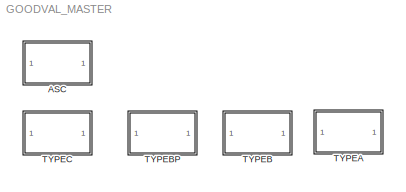
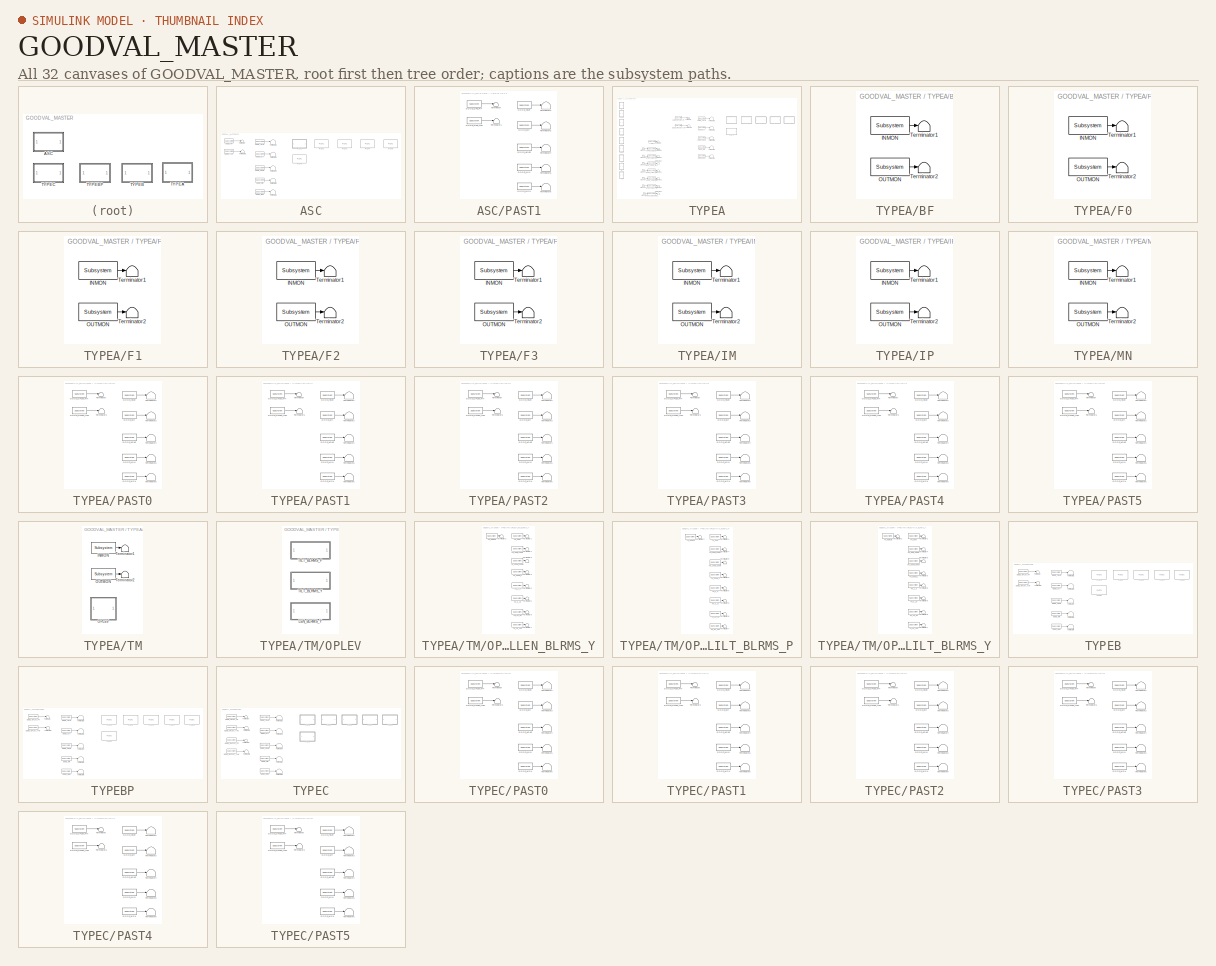
[diagram: thumbnail index - all 32 canvases of the model, root first then tree order]
MODEL GOODVAL_MASTER
KIND library
BLOCK [SubSystem] ASC
  Ports = []
  RequestExecContextInheritance = off
  SID = 212
  Variant = off
BLOCK [Reference] ASC/GOOD_DAY  REF=cdsEpicsIn/Subsystem
  AttributesFormatString = %<Tag>
  Description = Purpose:                                                                              \nCreate an EPICS input channel connection to the FE realtime controls.                 \n                                                                                      \nOperation:                                                                            \nOutputs value from an EPICS ai record. Value is ...<+266ch>  <repeated x174 — deduplicated; at blocks: GOOD_DAY, GOOD_HOUR, GOOD_MIN, GOOD_MON, GOOD_PIT, GOOD_YAW, GOOD_YEAR, GOOD_QPD_PIT, GOOD_QPD_YAW, INMON, OUTMON, GOOD_OPLEV_PIT, GOOD_OPLEV_YAW, TH_100M_300M, TH_10_30, TH_1_3, +9 more>
  Ports = [0, 1]
  SID = 213
  SourceBlock = cdsEpicsIn/Subsystem
  SourceType = SubSystem
  Tag = cdsEpicsIn
BLOCK [Reference] ASC/GOOD_HOUR  REF=cdsEpicsIn/Subsystem
  AttributesFormatString = %<Tag>
  Ports = [0, 1]
  SID = 214
  SourceBlock = cdsEpicsIn/Subsystem
  SourceType = SubSystem
  Tag = cdsEpicsIn
BLOCK [Reference] ASC/GOOD_MIN  REF=cdsEpicsIn/Subsystem
  AttributesFormatString = %<Tag>
  Ports = [0, 1]
  SID = 215
  SourceBlock = cdsEpicsIn/Subsystem
  SourceType = SubSystem
  Tag = cdsEpicsIn
BLOCK [Reference] ASC/GOOD_MON  REF=cdsEpicsIn/Subsystem
  AttributesFormatString = %<Tag>
  Ports = [0, 1]
  SID = 216
  SourceBlock = cdsEpicsIn/Subsystem
  SourceType = SubSystem
  Tag = cdsEpicsIn
BLOCK [Reference] ASC/GOOD_PIT  REF=cdsEpicsIn/Subsystem
  AttributesFormatString = %<Tag>
  Ports = [0, 1]
  SID = 217
  SourceBlock = cdsEpicsIn/Subsystem
  SourceType = SubSystem
  Tag = cdsEpicsIn
BLOCK [Reference] ASC/GOOD_YAW  REF=cdsEpicsIn/Subsystem
  AttributesFormatString = %<Tag>
  Ports = [0, 1]
  SID = 218
  SourceBlock = cdsEpicsIn/Subsystem
  SourceType = SubSystem
  Tag = cdsEpicsIn
BLOCK [Reference] ASC/GOOD_YEAR  REF=cdsEpicsIn/Subsystem
  AttributesFormatString = %<Tag>
  Ports = [0, 1]
  SID = 219
  SourceBlock = cdsEpicsIn/Subsystem
  SourceType = SubSystem
  Tag = cdsEpicsIn
BLOCK [Reference] ASC/PAST0  REF=GOODVAL_MASTER/ASC/PAST1
  Ports = []
  SID = 317
  SourceBlock = GOODVAL_MASTER/ASC/PAST1
  SourceType = SubSystem
BLOCK [SubSystem] ASC/PAST1
  Ports = []
  RequestExecContextInheritance = off
  SID = 235
  Variant = off
BLOCK [Reference] ASC/PAST1/GOOD_DAY  REF=cdsEpicsIn/Subsystem
  AttributesFormatString = %<Tag>
  Ports = [0, 1]
  SID = 236
  SourceBlock = cdsEpicsIn/Subsystem
  SourceType = SubSystem
  Tag = cdsEpicsIn
BLOCK [Reference] ASC/PAST1/GOOD_HOUR  REF=cdsEpicsIn/Subsystem
  AttributesFormatString = %<Tag>
  Ports = [0, 1]
  SID = 237
  SourceBlock = cdsEpicsIn/Subsystem
  SourceType = SubSystem
  Tag = cdsEpicsIn
BLOCK [Reference] ASC/PAST1/GOOD_MIN  REF=cdsEpicsIn/Subsystem
  AttributesFormatString = %<Tag>
  Ports = [0, 1]
  SID = 238
  SourceBlock = cdsEpicsIn/Subsystem
  SourceType = SubSystem
  Tag = cdsEpicsIn
BLOCK [Reference] ASC/PAST1/GOOD_MON  REF=cdsEpicsIn/Subsystem
  AttributesFormatString = %<Tag>
  Ports = [0, 1]
  SID = 239
  SourceBlock = cdsEpicsIn/Subsystem
  SourceType = SubSystem
  Tag = cdsEpicsIn
BLOCK [Reference] ASC/PAST1/GOOD_QPD_PIT  REF=cdsEpicsIn/Subsystem
  AttributesFormatString = %<Tag>
  Ports = [0, 1]
  SID = 240
  SourceBlock = cdsEpicsIn/Subsystem
  SourceType = SubSystem
  Tag = cdsEpicsIn
BLOCK [Reference] ASC/PAST1/GOOD_QPD_YAW  REF=cdsEpicsIn/Subsystem
  AttributesFormatString = %<Tag>
  Ports = [0, 1]
  SID = 241
  SourceBlock = cdsEpicsIn/Subsystem
  SourceType = SubSystem
  Tag = cdsEpicsIn
BLOCK [Reference] ASC/PAST1/GOOD_YEAR  REF=cdsEpicsIn/Subsystem
  AttributesFormatString = %<Tag>
  Ports = [0, 1]
  SID = 242
  SourceBlock = cdsEpicsIn/Subsystem
  SourceType = SubSystem
  Tag = cdsEpicsIn
BLOCK [Terminator] ASC/PAST1/Terminator
  SID = 243
BLOCK [Terminator] ASC/PAST1/Terminator1
  SID = 244
BLOCK [Terminator] ASC/PAST1/Terminator2
  SID = 245
BLOCK [Terminator] ASC/PAST1/Terminator3
  SID = 246
BLOCK [Terminator] ASC/PAST1/Terminator4
  SID = 247
BLOCK [Terminator] ASC/PAST1/Terminator5
  SID = 248
BLOCK [Terminator] ASC/PAST1/Terminator6
  SID = 249
BLOCK [Reference] ASC/PAST2  REF=GOODVAL_MASTER/ASC/PAST1
  Ports = []
  SID = 318
  SourceBlock = GOODVAL_MASTER/ASC/PAST1
  SourceType = SubSystem
BLOCK [Reference] ASC/PAST3  REF=GOODVAL_MASTER/ASC/PAST1
  Ports = []
  SID = 319
  SourceBlock = GOODVAL_MASTER/ASC/PAST1
  SourceType = SubSystem
BLOCK [Reference] ASC/PAST4  REF=GOODVAL_MASTER/ASC/PAST1
  Ports = []
  SID = 320
  SourceBlock = GOODVAL_MASTER/ASC/PAST1
  SourceType = SubSystem
BLOCK [Reference] ASC/PAST5  REF=GOODVAL_MASTER/ASC/PAST1
  Ports = []
  SID = 321
  SourceBlock = GOODVAL_MASTER/ASC/PAST1
  SourceType = SubSystem
BLOCK [Terminator] ASC/Terminator
  SID = 310
BLOCK [Terminator] ASC/Terminator1
  SID = 311
BLOCK [Terminator] ASC/Terminator2
  SID = 312
BLOCK [Terminator] ASC/Terminator3
  SID = 313
BLOCK [Terminator] ASC/Terminator4
  SID = 314
BLOCK [Terminator] ASC/Terminator5
  SID = 315
BLOCK [Terminator] ASC/Terminator6
  SID = 316
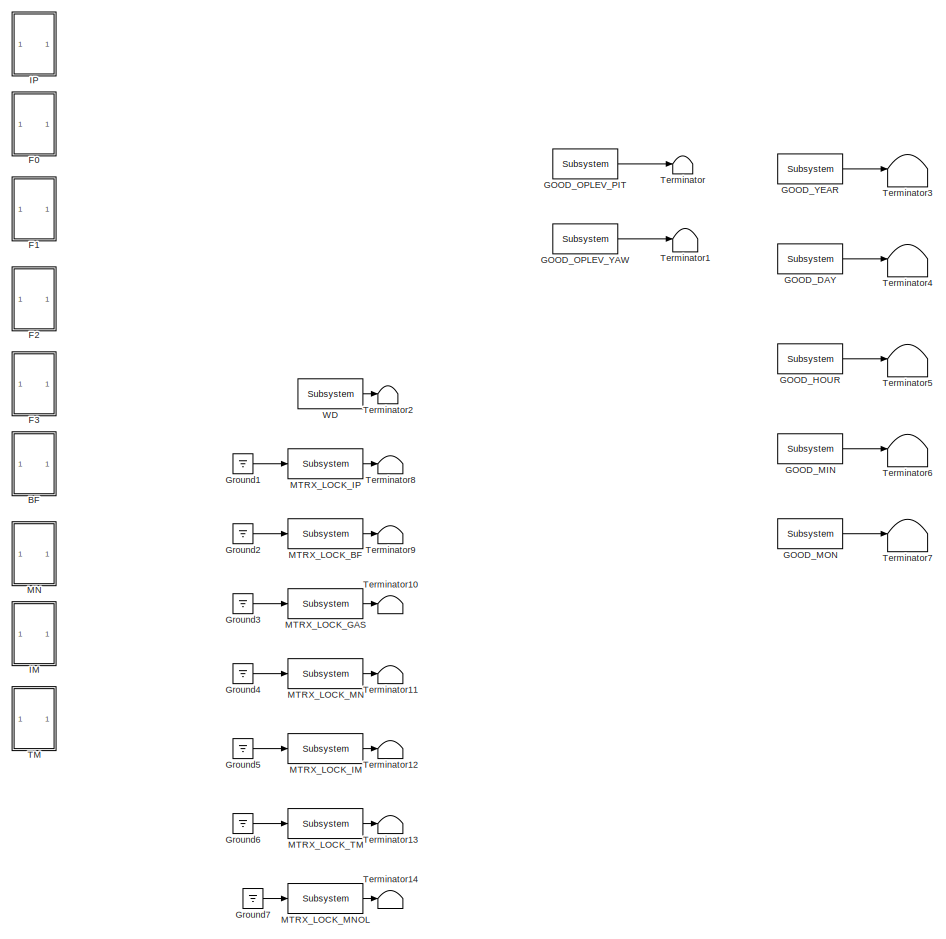
[diagram: TYPEA - part 1/2, left side, full height]
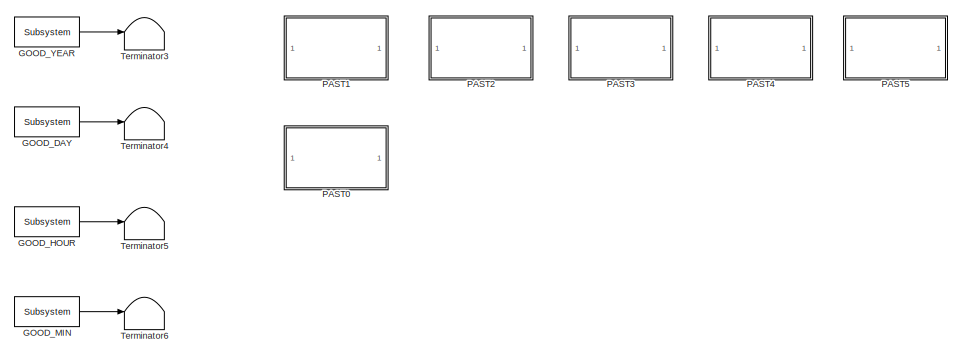
[diagram: TYPEA - part 2/2, middle right region]
BLOCK [SubSystem] TYPEA
  Ports = []
  RequestExecContextInheritance = off
  SID = 326
  Variant = off
BLOCK [SubSystem] TYPEA/BF
  Ports = []
  RequestExecContextInheritance = off
  SID = 327
  Variant = off
BLOCK [Reference] TYPEA/BF/INMON  REF=cdsEpicsIn/Subsystem
  AttributesFormatString = %<Tag>
  Ports = [0, 1]
  SID = 328
  SourceBlock = cdsEpicsIn/Subsystem
  SourceType = SubSystem
  Tag = cdsEpicsIn
BLOCK [Reference] TYPEA/BF/OUTMON  REF=cdsEpicsIn/Subsystem
  AttributesFormatString = %<Tag>
  Ports = [0, 1]
  SID = 329
  SourceBlock = cdsEpicsIn/Subsystem
  SourceType = SubSystem
  Tag = cdsEpicsIn
BLOCK [Terminator] TYPEA/BF/Terminator1
  SID = 330
BLOCK [Terminator] TYPEA/BF/Terminator2
  SID = 331
BLOCK [SubSystem] TYPEA/F0
  Ports = []
  RequestExecContextInheritance = off
  SID = 332
  Variant = off
BLOCK [Reference] TYPEA/F0/INMON  REF=cdsEpicsIn/Subsystem
  AttributesFormatString = %<Tag>
  Ports = [0, 1]
  SID = 333
  SourceBlock = cdsEpicsIn/Subsystem
  SourceType = SubSystem
  Tag = cdsEpicsIn
BLOCK [Reference] TYPEA/F0/OUTMON  REF=cdsEpicsIn/Subsystem
  AttributesFormatString = %<Tag>
  Ports = [0, 1]
  SID = 334
  SourceBlock = cdsEpicsIn/Subsystem
  SourceType = SubSystem
  Tag = cdsEpicsIn
BLOCK [Terminator] TYPEA/F0/Terminator1
  SID = 335
BLOCK [Terminator] TYPEA/F0/Terminator2
  SID = 336
BLOCK [SubSystem] TYPEA/F1
  Ports = []
  RequestExecContextInheritance = off
  SID = 337
  Variant = off
BLOCK [Reference] TYPEA/F1/INMON  REF=cdsEpicsIn/Subsystem
  AttributesFormatString = %<Tag>
  Ports = [0, 1]
  SID = 338
  SourceBlock = cdsEpicsIn/Subsystem
  SourceType = SubSystem
  Tag = cdsEpicsIn
BLOCK [Reference] TYPEA/F1/OUTMON  REF=cdsEpicsIn/Subsystem
  AttributesFormatString = %<Tag>
  Ports = [0, 1]
  SID = 339
  SourceBlock = cdsEpicsIn/Subsystem
  SourceType = SubSystem
  Tag = cdsEpicsIn
BLOCK [Terminator] TYPEA/F1/Terminator1
  SID = 340
BLOCK [Terminator] TYPEA/F1/Terminator2
  SID = 341
BLOCK [SubSystem] TYPEA/F2
  Ports = []
  RequestExecContextInheritance = off
  SID = 342
  Variant = off
BLOCK [Reference] TYPEA/F2/INMON  REF=cdsEpicsIn/Subsystem
  AttributesFormatString = %<Tag>
  Ports = [0, 1]
  SID = 343
  SourceBlock = cdsEpicsIn/Subsystem
  SourceType = SubSystem
  Tag = cdsEpicsIn
BLOCK [Reference] TYPEA/F2/OUTMON  REF=cdsEpicsIn/Subsystem
  AttributesFormatString = %<Tag>
  Ports = [0, 1]
  SID = 344
  SourceBlock = cdsEpicsIn/Subsystem
  SourceType = SubSystem
  Tag = cdsEpicsIn
BLOCK [Terminator] TYPEA/F2/Terminator1
  SID = 345
BLOCK [Terminator] TYPEA/F2/Terminator2
  SID = 346
BLOCK [SubSystem] TYPEA/F3
  Ports = []
  RequestExecContextInheritance = off
  SID = 347
  Variant = off
BLOCK [Reference] TYPEA/F3/INMON  REF=cdsEpicsIn/Subsystem
  AttributesFormatString = %<Tag>
  Ports = [0, 1]
  SID = 348
  SourceBlock = cdsEpicsIn/Subsystem
  SourceType = SubSystem
  Tag = cdsEpicsIn
BLOCK [Reference] TYPEA/F3/OUTMON  REF=cdsEpicsIn/Subsystem
  AttributesFormatString = %<Tag>
  Ports = [0, 1]
  SID = 349
  SourceBlock = cdsEpicsIn/Subsystem
  SourceType = SubSystem
  Tag = cdsEpicsIn
BLOCK [Terminator] TYPEA/F3/Terminator1
  SID = 350
BLOCK [Terminator] TYPEA/F3/Terminator2
  SID = 351
BLOCK [Reference] TYPEA/GOOD_DAY  REF=cdsEpicsIn/Subsystem
  AttributesFormatString = %<Tag>
  Ports = [0, 1]
  SID = 352
  SourceBlock = cdsEpicsIn/Subsystem
  SourceType = SubSystem
  Tag = cdsEpicsIn
BLOCK [Reference] TYPEA/GOOD_HOUR  REF=cdsEpicsIn/Subsystem
  AttributesFormatString = %<Tag>
  Ports = [0, 1]
  SID = 353
  SourceBlock = cdsEpicsIn/Subsystem
  SourceType = SubSystem
  Tag = cdsEpicsIn
BLOCK [Reference] TYPEA/GOOD_MIN  REF=cdsEpicsIn/Subsystem
  AttributesFormatString = %<Tag>
  Ports = [0, 1]
  SID = 354
  SourceBlock = cdsEpicsIn/Subsystem
  SourceType = SubSystem
  Tag = cdsEpicsIn
BLOCK [Reference] TYPEA/GOOD_MON  REF=cdsEpicsIn/Subsystem
  AttributesFormatString = %<Tag>
  Ports = [0, 1]
  SID = 355
  SourceBlock = cdsEpicsIn/Subsystem
  SourceType = SubSystem
  Tag = cdsEpicsIn
BLOCK [Reference] TYPEA/GOOD_OPLEV_PIT  REF=cdsEpicsIn/Subsystem
  AttributesFormatString = %<Tag>
  Ports = [0, 1]
  SID = 356
  SourceBlock = cdsEpicsIn/Subsystem
  SourceType = SubSystem
  Tag = cdsEpicsIn
BLOCK [Reference] TYPEA/GOOD_OPLEV_YAW  REF=cdsEpicsIn/Subsystem
  AttributesFormatString = %<Tag>
  Ports = [0, 1]
  SID = 357
  SourceBlock = cdsEpicsIn/Subsystem
  SourceType = SubSystem
  Tag = cdsEpicsIn
BLOCK [Reference] TYPEA/GOOD_YEAR  REF=cdsEpicsIn/Subsystem
  AttributesFormatString = %<Tag>
  Ports = [0, 1]
  SID = 358
  SourceBlock = cdsEpicsIn/Subsystem
  SourceType = SubSystem
  Tag = cdsEpicsIn
BLOCK [Ground] TYPEA/Ground1
  SID = 359
BLOCK [Ground] TYPEA/Ground2
  SID = 539
BLOCK [Ground] TYPEA/Ground3
  SID = 542
BLOCK [Ground] TYPEA/Ground4
  SID = 545
BLOCK [Ground] TYPEA/Ground5
  SID = 548
BLOCK [Ground] TYPEA/Ground6
  SID = 551
BLOCK [Ground] TYPEA/Ground7
  SID = 554
BLOCK [SubSystem] TYPEA/IM
  Ports = []
  RequestExecContextInheritance = off
  SID = 360
  Variant = off
BLOCK [Reference] TYPEA/IM/INMON  REF=cdsEpicsIn/Subsystem
  AttributesFormatString = %<Tag>
  Ports = [0, 1]
  SID = 361
  SourceBlock = cdsEpicsIn/Subsystem
  SourceType = SubSystem
  Tag = cdsEpicsIn
BLOCK [Reference] TYPEA/IM/OUTMON  REF=cdsEpicsIn/Subsystem
  AttributesFormatString = %<Tag>
  Ports = [0, 1]
  SID = 362
  SourceBlock = cdsEpicsIn/Subsystem
  SourceType = SubSystem
  Tag = cdsEpicsIn
BLOCK [Terminator] TYPEA/IM/Terminator1
  SID = 363
BLOCK [Terminator] TYPEA/IM/Terminator2
  SID = 364
BLOCK [SubSystem] TYPEA/IP
  Ports = []
  RequestExecContextInheritance = off
  SID = 365
  Variant = off
BLOCK [Reference] TYPEA/IP/INMON  REF=cdsEpicsIn/Subsystem
  AttributesFormatString = %<Tag>
  Ports = [0, 1]
  SID = 366
  SourceBlock = cdsEpicsIn/Subsystem
  SourceType = SubSystem
  Tag = cdsEpicsIn
BLOCK [Reference] TYPEA/IP/OUTMON  REF=cdsEpicsIn/Subsystem
  AttributesFormatString = %<Tag>
  Ports = [0, 1]
  SID = 367
  SourceBlock = cdsEpicsIn/Subsystem
  SourceType = SubSystem
  Tag = cdsEpicsIn
BLOCK [Terminator] TYPEA/IP/Terminator1
  SID = 368
BLOCK [Terminator] TYPEA/IP/Terminator2
  SID = 369
BLOCK [SubSystem] TYPEA/MN
  Ports = []
  RequestExecContextInheritance = off
  SID = 370
  Variant = off
BLOCK [Reference] TYPEA/MN/INMON  REF=cdsEpicsIn/Subsystem
  AttributesFormatString = %<Tag>
  Ports = [0, 1]
  SID = 371
  SourceBlock = cdsEpicsIn/Subsystem
  SourceType = SubSystem
  Tag = cdsEpicsIn
BLOCK [Reference] TYPEA/MN/OUTMON  REF=cdsEpicsIn/Subsystem
  AttributesFormatString = %<Tag>
  Ports = [0, 1]
  SID = 372
  SourceBlock = cdsEpicsIn/Subsystem
  SourceType = SubSystem
  Tag = cdsEpicsIn
BLOCK [Terminator] TYPEA/MN/Terminator1
  SID = 373
BLOCK [Terminator] TYPEA/MN/Terminator2
  SID = 374
BLOCK [Reference] TYPEA/MTRX_LOCK_BF  REF=cdsEpicsBinIn/Subsystem
  AttributesFormatString = %<Tag>
  Description = Purpose:                                                                            \nCreate an EPICS binary (0 or 1) input channel to the FE realtime controls.          \n                                                                                    \nOperation:                                                                          \nOutputs value from an EPICS ai record. Value is binary i...<+252ch>  <repeated x7 — deduplicated; at blocks: MTRX_LOCK_BF, MTRX_LOCK_GAS, MTRX_LOCK_IM, MTRX_LOCK_IP, MTRX_LOCK_MN, MTRX_LOCK_MNOL, MTRX_LOCK_TM>
  Ports = [1, 1]
  SID = 540
  SourceBlock = cdsEpicsBinIn/Subsystem
  SourceType = SubSystem
  Tag = cdsEpicsBinIn
BLOCK [Reference] TYPEA/MTRX_LOCK_GAS  REF=cdsEpicsBinIn/Subsystem
  AttributesFormatString = %<Tag>
  Ports = [1, 1]
  SID = 543
  SourceBlock = cdsEpicsBinIn/Subsystem
  SourceType = SubSystem
  Tag = cdsEpicsBinIn
BLOCK [Reference] TYPEA/MTRX_LOCK_IM  REF=cdsEpicsBinIn/Subsystem
  AttributesFormatString = %<Tag>
  Ports = [1, 1]
  SID = 549
  SourceBlock = cdsEpicsBinIn/Subsystem
  SourceType = SubSystem
  Tag = cdsEpicsBinIn
BLOCK [Reference] TYPEA/MTRX_LOCK_IP  REF=cdsEpicsBinIn/Subsystem
  AttributesFormatString = %<Tag>
  Ports = [1, 1]
  SID = 375
  SourceBlock = cdsEpicsBinIn/Subsystem
  SourceType = SubSystem
  Tag = cdsEpicsBinIn
BLOCK [Reference] TYPEA/MTRX_LOCK_MN  REF=cdsEpicsBinIn/Subsystem
  AttributesFormatString = %<Tag>
  Ports = [1, 1]
  SID = 546
  SourceBlock = cdsEpicsBinIn/Subsystem
  SourceType = SubSystem
  Tag = cdsEpicsBinIn
BLOCK [Reference] TYPEA/MTRX_LOCK_MNOL  REF=cdsEpicsBinIn/Subsystem
  AttributesFormatString = %<Tag>
  Ports = [1, 1]
  SID = 555
  SourceBlock = cdsEpicsBinIn/Subsystem
  SourceType = SubSystem
  Tag = cdsEpicsBinIn
BLOCK [Reference] TYPEA/MTRX_LOCK_TM  REF=cdsEpicsBinIn/Subsystem
  AttributesFormatString = %<Tag>
  Ports = [1, 1]
  SID = 552
  SourceBlock = cdsEpicsBinIn/Subsystem
  SourceType = SubSystem
  Tag = cdsEpicsBinIn
BLOCK [SubSystem] TYPEA/PAST0
  Ports = []
  RequestExecContextInheritance = off
  SID = 376
  Variant = off
BLOCK [Reference] TYPEA/PAST0/GOOD_DAY  REF=cdsEpicsIn/Subsystem
  AttributesFormatString = %<Tag>
  Ports = [0, 1]
  SID = 377
  SourceBlock = cdsEpicsIn/Subsystem
  SourceType = SubSystem
  Tag = cdsEpicsIn
BLOCK [Reference] TYPEA/PAST0/GOOD_HOUR  REF=cdsEpicsIn/Subsystem
  AttributesFormatString = %<Tag>
  Ports = [0, 1]
  SID = 378
  SourceBlock = cdsEpicsIn/Subsystem
  SourceType = SubSystem
  Tag = cdsEpicsIn
BLOCK [Reference] TYPEA/PAST0/GOOD_MIN  REF=cdsEpicsIn/Subsystem
  AttributesFormatString = %<Tag>
  Ports = [0, 1]
  SID = 379
  SourceBlock = cdsEpicsIn/Subsystem
  SourceType = SubSystem
  Tag = cdsEpicsIn
BLOCK [Reference] TYPEA/PAST0/GOOD_MON  REF=cdsEpicsIn/Subsystem
  AttributesFormatString = %<Tag>
  Ports = [0, 1]
  SID = 380
  SourceBlock = cdsEpicsIn/Subsystem
  SourceType = SubSystem
  Tag = cdsEpicsIn
BLOCK [Reference] TYPEA/PAST0/GOOD_OPLEV_PIT  REF=cdsEpicsIn/Subsystem
  AttributesFormatString = %<Tag>
  Ports = [0, 1]
  SID = 381
  SourceBlock = cdsEpicsIn/Subsystem
  SourceType = SubSystem
  Tag = cdsEpicsIn
BLOCK [Reference] TYPEA/PAST0/GOOD_OPLEV_YAW  REF=cdsEpicsIn/Subsystem
  AttributesFormatString = %<Tag>
  Ports = [0, 1]
  SID = 382
  SourceBlock = cdsEpicsIn/Subsystem
  SourceType = SubSystem
  Tag = cdsEpicsIn
BLOCK [Reference] TYPEA/PAST0/GOOD_YEAR  REF=cdsEpicsIn/Subsystem
  AttributesFormatString = %<Tag>
  Ports = [0, 1]
  SID = 383
  SourceBlock = cdsEpicsIn/Subsystem
  SourceType = SubSystem
  Tag = cdsEpicsIn
BLOCK [Terminator] TYPEA/PAST0/Terminator
  SID = 384
BLOCK [Terminator] TYPEA/PAST0/Terminator1
  SID = 385
BLOCK [Terminator] TYPEA/PAST0/Terminator2
  SID = 386
BLOCK [Terminator] TYPEA/PAST0/Terminator3
  SID = 387
BLOCK [Terminator] TYPEA/PAST0/Terminator4
  SID = 388
BLOCK [Terminator] TYPEA/PAST0/Terminator5
  SID = 389
BLOCK [Terminator] TYPEA/PAST0/Terminator6
  SID = 390
BLOCK [SubSystem] TYPEA/PAST1
  Ports = []
  RequestExecContextInheritance = off
  SID = 391
  Variant = off
BLOCK [Reference] TYPEA/PAST1/GOOD_DAY  REF=cdsEpicsIn/Subsystem
  AttributesFormatString = %<Tag>
  Ports = [0, 1]
  SID = 392
  SourceBlock = cdsEpicsIn/Subsystem
  SourceType = SubSystem
  Tag = cdsEpicsIn
BLOCK [Reference] TYPEA/PAST1/GOOD_HOUR  REF=cdsEpicsIn/Subsystem
  AttributesFormatString = %<Tag>
  Ports = [0, 1]
  SID = 393
  SourceBlock = cdsEpicsIn/Subsystem
  SourceType = SubSystem
  Tag = cdsEpicsIn
BLOCK [Reference] TYPEA/PAST1/GOOD_MIN  REF=cdsEpicsIn/Subsystem
  AttributesFormatString = %<Tag>
  Ports = [0, 1]
  SID = 394
  SourceBlock = cdsEpicsIn/Subsystem
  SourceType = SubSystem
  Tag = cdsEpicsIn
BLOCK [Reference] TYPEA/PAST1/GOOD_MON  REF=cdsEpicsIn/Subsystem
  AttributesFormatString = %<Tag>
  Ports = [0, 1]
  SID = 395
  SourceBlock = cdsEpicsIn/Subsystem
  SourceType = SubSystem
  Tag = cdsEpicsIn
BLOCK [Reference] TYPEA/PAST1/GOOD_OPLEV_PIT  REF=cdsEpicsIn/Subsystem
  AttributesFormatString = %<Tag>
  Ports = [0, 1]
  SID = 396
  SourceBlock = cdsEpicsIn/Subsystem
  SourceType = SubSystem
  Tag = cdsEpicsIn
BLOCK [Reference] TYPEA/PAST1/GOOD_OPLEV_YAW  REF=cdsEpicsIn/Subsystem
  AttributesFormatString = %<Tag>
  Ports = [0, 1]
  SID = 397
  SourceBlock = cdsEpicsIn/Subsystem
  SourceType = SubSystem
  Tag = cdsEpicsIn
BLOCK [Reference] TYPEA/PAST1/GOOD_YEAR  REF=cdsEpicsIn/Subsystem
  AttributesFormatString = %<Tag>
  Ports = [0, 1]
  SID = 398
  SourceBlock = cdsEpicsIn/Subsystem
  SourceType = SubSystem
  Tag = cdsEpicsIn
BLOCK [Terminator] TYPEA/PAST1/Terminator
  SID = 399
BLOCK [Terminator] TYPEA/PAST1/Terminator1
  SID = 400
BLOCK [Terminator] TYPEA/PAST1/Terminator2
  SID = 401
BLOCK [Terminator] TYPEA/PAST1/Terminator3
  SID = 402
BLOCK [Terminator] TYPEA/PAST1/Terminator4
  SID = 403
BLOCK [Terminator] TYPEA/PAST1/Terminator5
  SID = 404
BLOCK [Terminator] TYPEA/PAST1/Terminator6
  SID = 405
BLOCK [SubSystem] TYPEA/PAST2
  Ports = []
  RequestExecContextInheritance = off
  SID = 406
  Variant = off
BLOCK [Reference] TYPEA/PAST2/GOOD_DAY  REF=cdsEpicsIn/Subsystem
  AttributesFormatString = %<Tag>
  Ports = [0, 1]
  SID = 407
  SourceBlock = cdsEpicsIn/Subsystem
  SourceType = SubSystem
  Tag = cdsEpicsIn
BLOCK [Reference] TYPEA/PAST2/GOOD_HOUR  REF=cdsEpicsIn/Subsystem
  AttributesFormatString = %<Tag>
  Ports = [0, 1]
  SID = 408
  SourceBlock = cdsEpicsIn/Subsystem
  SourceType = SubSystem
  Tag = cdsEpicsIn
BLOCK [Reference] TYPEA/PAST2/GOOD_MIN  REF=cdsEpicsIn/Subsystem
  AttributesFormatString = %<Tag>
  Ports = [0, 1]
  SID = 409
  SourceBlock = cdsEpicsIn/Subsystem
  SourceType = SubSystem
  Tag = cdsEpicsIn
BLOCK [Reference] TYPEA/PAST2/GOOD_MON  REF=cdsEpicsIn/Subsystem
  AttributesFormatString = %<Tag>
  Ports = [0, 1]
  SID = 410
  SourceBlock = cdsEpicsIn/Subsystem
  SourceType = SubSystem
  Tag = cdsEpicsIn
BLOCK [Reference] TYPEA/PAST2/GOOD_OPLEV_PIT  REF=cdsEpicsIn/Subsystem
  AttributesFormatString = %<Tag>
  Ports = [0, 1]
  SID = 411
  SourceBlock = cdsEpicsIn/Subsystem
  SourceType = SubSystem
  Tag = cdsEpicsIn
BLOCK [Reference] TYPEA/PAST2/GOOD_OPLEV_YAW  REF=cdsEpicsIn/Subsystem
  AttributesFormatString = %<Tag>
  Ports = [0, 1]
  SID = 412
  SourceBlock = cdsEpicsIn/Subsystem
  SourceType = SubSystem
  Tag = cdsEpicsIn
BLOCK [Reference] TYPEA/PAST2/GOOD_YEAR  REF=cdsEpicsIn/Subsystem
  AttributesFormatString = %<Tag>
  Ports = [0, 1]
  SID = 413
  SourceBlock = cdsEpicsIn/Subsystem
  SourceType = SubSystem
  Tag = cdsEpicsIn
BLOCK [Terminator] TYPEA/PAST2/Terminator
  SID = 414
BLOCK [Terminator] TYPEA/PAST2/Terminator1
  SID = 415
BLOCK [Terminator] TYPEA/PAST2/Terminator2
  SID = 416
BLOCK [Terminator] TYPEA/PAST2/Terminator3
  SID = 417
BLOCK [Terminator] TYPEA/PAST2/Terminator4
  SID = 418
BLOCK [Terminator] TYPEA/PAST2/Terminator5
  SID = 419
BLOCK [Terminator] TYPEA/PAST2/Terminator6
  SID = 420
BLOCK [SubSystem] TYPEA/PAST3
  Ports = []
  RequestExecContextInheritance = off
  SID = 421
  Variant = off
BLOCK [Reference] TYPEA/PAST3/GOOD_DAY  REF=cdsEpicsIn/Subsystem
  AttributesFormatString = %<Tag>
  Ports = [0, 1]
  SID = 422
  SourceBlock = cdsEpicsIn/Subsystem
  SourceType = SubSystem
  Tag = cdsEpicsIn
BLOCK [Reference] TYPEA/PAST3/GOOD_HOUR  REF=cdsEpicsIn/Subsystem
  AttributesFormatString = %<Tag>
  Ports = [0, 1]
  SID = 423
  SourceBlock = cdsEpicsIn/Subsystem
  SourceType = SubSystem
  Tag = cdsEpicsIn
BLOCK [Reference] TYPEA/PAST3/GOOD_MIN  REF=cdsEpicsIn/Subsystem
  AttributesFormatString = %<Tag>
  Ports = [0, 1]
  SID = 424
  SourceBlock = cdsEpicsIn/Subsystem
  SourceType = SubSystem
  Tag = cdsEpicsIn
BLOCK [Reference] TYPEA/PAST3/GOOD_MON  REF=cdsEpicsIn/Subsystem
  AttributesFormatString = %<Tag>
  Ports = [0, 1]
  SID = 425
  SourceBlock = cdsEpicsIn/Subsystem
  SourceType = SubSystem
  Tag = cdsEpicsIn
BLOCK [Reference] TYPEA/PAST3/GOOD_OPLEV_PIT  REF=cdsEpicsIn/Subsystem
  AttributesFormatString = %<Tag>
  Ports = [0, 1]
  SID = 426
  SourceBlock = cdsEpicsIn/Subsystem
  SourceType = SubSystem
  Tag = cdsEpicsIn
BLOCK [Reference] TYPEA/PAST3/GOOD_OPLEV_YAW  REF=cdsEpicsIn/Subsystem
  AttributesFormatString = %<Tag>
  Ports = [0, 1]
  SID = 427
  SourceBlock = cdsEpicsIn/Subsystem
  SourceType = SubSystem
  Tag = cdsEpicsIn
BLOCK [Reference] TYPEA/PAST3/GOOD_YEAR  REF=cdsEpicsIn/Subsystem
  AttributesFormatString = %<Tag>
  Ports = [0, 1]
  SID = 428
  SourceBlock = cdsEpicsIn/Subsystem
  SourceType = SubSystem
  Tag = cdsEpicsIn
BLOCK [Terminator] TYPEA/PAST3/Terminator
  SID = 429
BLOCK [Terminator] TYPEA/PAST3/Terminator1
  SID = 430
BLOCK [Terminator] TYPEA/PAST3/Terminator2
  SID = 431
BLOCK [Terminator] TYPEA/PAST3/Terminator3
  SID = 432
BLOCK [Terminator] TYPEA/PAST3/Terminator4
  SID = 433
BLOCK [Terminator] TYPEA/PAST3/Terminator5
  SID = 434
BLOCK [Terminator] TYPEA/PAST3/Terminator6
  SID = 435
BLOCK [SubSystem] TYPEA/PAST4
  Ports = []
  RequestExecContextInheritance = off
  SID = 436
  Variant = off
BLOCK [Reference] TYPEA/PAST4/GOOD_DAY  REF=cdsEpicsIn/Subsystem
  AttributesFormatString = %<Tag>
  Ports = [0, 1]
  SID = 437
  SourceBlock = cdsEpicsIn/Subsystem
  SourceType = SubSystem
  Tag = cdsEpicsIn
BLOCK [Reference] TYPEA/PAST4/GOOD_HOUR  REF=cdsEpicsIn/Subsystem
  AttributesFormatString = %<Tag>
  Ports = [0, 1]
  SID = 438
  SourceBlock = cdsEpicsIn/Subsystem
  SourceType = SubSystem
  Tag = cdsEpicsIn
BLOCK [Reference] TYPEA/PAST4/GOOD_MIN  REF=cdsEpicsIn/Subsystem
  AttributesFormatString = %<Tag>
  Ports = [0, 1]
  SID = 439
  SourceBlock = cdsEpicsIn/Subsystem
  SourceType = SubSystem
  Tag = cdsEpicsIn
BLOCK [Reference] TYPEA/PAST4/GOOD_MON  REF=cdsEpicsIn/Subsystem
  AttributesFormatString = %<Tag>
  Ports = [0, 1]
  SID = 440
  SourceBlock = cdsEpicsIn/Subsystem
  SourceType = SubSystem
  Tag = cdsEpicsIn
BLOCK [Reference] TYPEA/PAST4/GOOD_OPLEV_PIT  REF=cdsEpicsIn/Subsystem
  AttributesFormatString = %<Tag>
  Ports = [0, 1]
  SID = 441
  SourceBlock = cdsEpicsIn/Subsystem
  SourceType = SubSystem
  Tag = cdsEpicsIn
BLOCK [Reference] TYPEA/PAST4/GOOD_OPLEV_YAW  REF=cdsEpicsIn/Subsystem
  AttributesFormatString = %<Tag>
  Ports = [0, 1]
  SID = 442
  SourceBlock = cdsEpicsIn/Subsystem
  SourceType = SubSystem
  Tag = cdsEpicsIn
BLOCK [Reference] TYPEA/PAST4/GOOD_YEAR  REF=cdsEpicsIn/Subsystem
  AttributesFormatString = %<Tag>
  Ports = [0, 1]
  SID = 443
  SourceBlock = cdsEpicsIn/Subsystem
  SourceType = SubSystem
  Tag = cdsEpicsIn
BLOCK [Terminator] TYPEA/PAST4/Terminator
  SID = 444
BLOCK [Terminator] TYPEA/PAST4/Terminator1
  SID = 445
BLOCK [Terminator] TYPEA/PAST4/Terminator2
  SID = 446
BLOCK [Terminator] TYPEA/PAST4/Terminator3
  SID = 447
BLOCK [Terminator] TYPEA/PAST4/Terminator4
  SID = 448
BLOCK [Terminator] TYPEA/PAST4/Terminator5
  SID = 449
BLOCK [Terminator] TYPEA/PAST4/Terminator6
  SID = 450
BLOCK [SubSystem] TYPEA/PAST5
  Ports = []
  RequestExecContextInheritance = off
  SID = 451
  Variant = off
BLOCK [Reference] TYPEA/PAST5/GOOD_DAY  REF=cdsEpicsIn/Subsystem
  AttributesFormatString = %<Tag>
  Ports = [0, 1]
  SID = 452
  SourceBlock = cdsEpicsIn/Subsystem
  SourceType = SubSystem
  Tag = cdsEpicsIn
BLOCK [Reference] TYPEA/PAST5/GOOD_HOUR  REF=cdsEpicsIn/Subsystem
  AttributesFormatString = %<Tag>
  Ports = [0, 1]
  SID = 453
  SourceBlock = cdsEpicsIn/Subsystem
  SourceType = SubSystem
  Tag = cdsEpicsIn
BLOCK [Reference] TYPEA/PAST5/GOOD_MIN  REF=cdsEpicsIn/Subsystem
  AttributesFormatString = %<Tag>
  Ports = [0, 1]
  SID = 454
  SourceBlock = cdsEpicsIn/Subsystem
  SourceType = SubSystem
  Tag = cdsEpicsIn
BLOCK [Reference] TYPEA/PAST5/GOOD_MON  REF=cdsEpicsIn/Subsystem
  AttributesFormatString = %<Tag>
  Ports = [0, 1]
  SID = 455
  SourceBlock = cdsEpicsIn/Subsystem
  SourceType = SubSystem
  Tag = cdsEpicsIn
BLOCK [Reference] TYPEA/PAST5/GOOD_OPLEV_PIT  REF=cdsEpicsIn/Subsystem
  AttributesFormatString = %<Tag>
  Ports = [0, 1]
  SID = 456
  SourceBlock = cdsEpicsIn/Subsystem
  SourceType = SubSystem
  Tag = cdsEpicsIn
BLOCK [Reference] TYPEA/PAST5/GOOD_OPLEV_YAW  REF=cdsEpicsIn/Subsystem
  AttributesFormatString = %<Tag>
  Ports = [0, 1]
  SID = 457
  SourceBlock = cdsEpicsIn/Subsystem
  SourceType = SubSystem
  Tag = cdsEpicsIn
BLOCK [Reference] TYPEA/PAST5/GOOD_YEAR  REF=cdsEpicsIn/Subsystem
  AttributesFormatString = %<Tag>
  Ports = [0, 1]
  SID = 458
  SourceBlock = cdsEpicsIn/Subsystem
  SourceType = SubSystem
  Tag = cdsEpicsIn
BLOCK [Terminator] TYPEA/PAST5/Terminator
  SID = 459
BLOCK [Terminator] TYPEA/PAST5/Terminator1
  SID = 460
BLOCK [Terminator] TYPEA/PAST5/Terminator2
  SID = 461
BLOCK [Terminator] TYPEA/PAST5/Terminator3
  SID = 462
BLOCK [Terminator] TYPEA/PAST5/Terminator4
  SID = 463
BLOCK [Terminator] TYPEA/PAST5/Terminator5
  SID = 464
BLOCK [Terminator] TYPEA/PAST5/Terminator6
  SID = 465
BLOCK [SubSystem] TYPEA/TM
  Ports = []
  RequestExecContextInheritance = off
  SID = 466
  Variant = off
BLOCK [Reference] TYPEA/TM/INMON  REF=cdsEpicsIn/Subsystem
  AttributesFormatString = %<Tag>
  Ports = [0, 1]
  SID = 467
  SourceBlock = cdsEpicsIn/Subsystem
  SourceType = SubSystem
  Tag = cdsEpicsIn
BLOCK [SubSystem] TYPEA/TM/OPLEV
  Ports = []
  RequestExecContextInheritance = off
  SID = 468
  Variant = off
BLOCK [SubSystem] TYPEA/TM/OPLEV/LEN_BLRMS_Y
  Ports = []
  RequestExecContextInheritance = off
  SID = 469
  Variant = off
BLOCK [Reference] TYPEA/TM/OPLEV/LEN_BLRMS_Y/TH_100M_300M  REF=cdsEpicsIn/Subsystem
  AttributesFormatString = %<Tag>
  Ports = [0, 1]
  SID = 470
  SourceBlock = cdsEpicsIn/Subsystem
  SourceType = SubSystem
  Tag = cdsEpicsIn
BLOCK [Reference] TYPEA/TM/OPLEV/LEN_BLRMS_Y/TH_10_30  REF=cdsEpicsIn/Subsystem
  AttributesFormatString = %<Tag>
  Ports = [0, 1]
  SID = 471
  SourceBlock = cdsEpicsIn/Subsystem
  SourceType = SubSystem
  Tag = cdsEpicsIn
BLOCK [Reference] TYPEA/TM/OPLEV/LEN_BLRMS_Y/TH_1_3  REF=cdsEpicsIn/Subsystem
  AttributesFormatString = %<Tag>
  Ports = [0, 1]
  SID = 472
  SourceBlock = cdsEpicsIn/Subsystem
  SourceType = SubSystem
  Tag = cdsEpicsIn
BLOCK [Reference] TYPEA/TM/OPLEV/LEN_BLRMS_Y/TH_300M_1  REF=cdsEpicsIn/Subsystem
  AttributesFormatString = %<Tag>
  Ports = [0, 1]
  SID = 473
  SourceBlock = cdsEpicsIn/Subsystem
  SourceType = SubSystem
  Tag = cdsEpicsIn
BLOCK [Reference] TYPEA/TM/OPLEV/LEN_BLRMS_Y/TH_30M  REF=cdsEpicsIn/Subsystem
  AttributesFormatString = %<Tag>
  Ports = [0, 1]
  SID = 474
  SourceBlock = cdsEpicsIn/Subsystem
  SourceType = SubSystem
  Tag = cdsEpicsIn
BLOCK [Reference] TYPEA/TM/OPLEV/LEN_BLRMS_Y/TH_30M_100M  REF=cdsEpicsIn/Subsystem
  AttributesFormatString = %<Tag>
  Ports = [0, 1]
  SID = 475
  SourceBlock = cdsEpicsIn/Subsystem
  SourceType = SubSystem
  Tag = cdsEpicsIn
BLOCK [Reference] TYPEA/TM/OPLEV/LEN_BLRMS_Y/TH_30_100  REF=cdsEpicsIn/Subsystem
  AttributesFormatString = %<Tag>
  Ports = [0, 1]
  SID = 476
  SourceBlock = cdsEpicsIn/Subsystem
  SourceType = SubSystem
  Tag = cdsEpicsIn
BLOCK [Reference] TYPEA/TM/OPLEV/LEN_BLRMS_Y/TH_3_10  REF=cdsEpicsIn/Subsystem
  AttributesFormatString = %<Tag>
  Ports = [0, 1]
  SID = 477
  SourceBlock = cdsEpicsIn/Subsystem
  SourceType = SubSystem
  Tag = cdsEpicsIn
BLOCK [Reference] TYPEA/TM/OPLEV/LEN_BLRMS_Y/TH_NONLIN  REF=cdsEpicsIn/Subsystem
  AttributesFormatString = %<Tag>
  Ports = [0, 1]
  SID = 478
  SourceBlock = cdsEpicsIn/Subsystem
  SourceType = SubSystem
  Tag = cdsEpicsIn
BLOCK [Terminator] TYPEA/TM/OPLEV/LEN_BLRMS_Y/Terminator1
  SID = 479
BLOCK [Terminator] TYPEA/TM/OPLEV/LEN_BLRMS_Y/Terminator2
  SID = 480
BLOCK [Terminator] TYPEA/TM/OPLEV/LEN_BLRMS_Y/Terminator3
  SID = 481
BLOCK [Terminator] TYPEA/TM/OPLEV/LEN_BLRMS_Y/Terminator4
  SID = 482
BLOCK [Terminator] TYPEA/TM/OPLEV/LEN_BLRMS_Y/Terminator5
  SID = 483
BLOCK [Terminator] TYPEA/TM/OPLEV/LEN_BLRMS_Y/Terminator6
  SID = 484
BLOCK [Terminator] TYPEA/TM/OPLEV/LEN_BLRMS_Y/Terminator7
  SID = 485
BLOCK [Terminator] TYPEA/TM/OPLEV/LEN_BLRMS_Y/Terminator8
  SID = 486
BLOCK [Terminator] TYPEA/TM/OPLEV/LEN_BLRMS_Y/Terminator9
  SID = 487
BLOCK [SubSystem] TYPEA/TM/OPLEV/TILT_BLRMS_P
  Ports = []
  RequestExecContextInheritance = off
  SID = 488
  Variant = off
BLOCK [Reference] TYPEA/TM/OPLEV/TILT_BLRMS_P/TH_100M_300M  REF=cdsEpicsIn/Subsystem
  AttributesFormatString = %<Tag>
  Ports = [0, 1]
  SID = 489
  SourceBlock = cdsEpicsIn/Subsystem
  SourceType = SubSystem
  Tag = cdsEpicsIn
BLOCK [Reference] TYPEA/TM/OPLEV/TILT_BLRMS_P/TH_10_30  REF=cdsEpicsIn/Subsystem
  AttributesFormatString = %<Tag>
  Ports = [0, 1]
  SID = 490
  SourceBlock = cdsEpicsIn/Subsystem
  SourceType = SubSystem
  Tag = cdsEpicsIn
BLOCK [Reference] TYPEA/TM/OPLEV/TILT_BLRMS_P/TH_1_3  REF=cdsEpicsIn/Subsystem
  AttributesFormatString = %<Tag>
  Ports = [0, 1]
  SID = 491
  SourceBlock = cdsEpicsIn/Subsystem
  SourceType = SubSystem
  Tag = cdsEpicsIn
BLOCK [Reference] TYPEA/TM/OPLEV/TILT_BLRMS_P/TH_300M_1  REF=cdsEpicsIn/Subsystem
  AttributesFormatString = %<Tag>
  Ports = [0, 1]
  SID = 492
  SourceBlock = cdsEpicsIn/Subsystem
  SourceType = SubSystem
  Tag = cdsEpicsIn
BLOCK [Reference] TYPEA/TM/OPLEV/TILT_BLRMS_P/TH_30M  REF=cdsEpicsIn/Subsystem
  AttributesFormatString = %<Tag>
  Ports = [0, 1]
  SID = 493
  SourceBlock = cdsEpicsIn/Subsystem
  SourceType = SubSystem
  Tag = cdsEpicsIn
BLOCK [Reference] TYPEA/TM/OPLEV/TILT_BLRMS_P/TH_30M_100M  REF=cdsEpicsIn/Subsystem
  AttributesFormatString = %<Tag>
  Ports = [0, 1]
  SID = 494
  SourceBlock = cdsEpicsIn/Subsystem
  SourceType = SubSystem
  Tag = cdsEpicsIn
BLOCK [Reference] TYPEA/TM/OPLEV/TILT_BLRMS_P/TH_30_100  REF=cdsEpicsIn/Subsystem
  AttributesFormatString = %<Tag>
  Ports = [0, 1]
  SID = 495
  SourceBlock = cdsEpicsIn/Subsystem
  SourceType = SubSystem
  Tag = cdsEpicsIn
BLOCK [Reference] TYPEA/TM/OPLEV/TILT_BLRMS_P/TH_3_10  REF=cdsEpicsIn/Subsystem
  AttributesFormatString = %<Tag>
  Ports = [0, 1]
  SID = 496
  SourceBlock = cdsEpicsIn/Subsystem
  SourceType = SubSystem
  Tag = cdsEpicsIn
BLOCK [Reference] TYPEA/TM/OPLEV/TILT_BLRMS_P/TH_NONLIN  REF=cdsEpicsIn/Subsystem
  AttributesFormatString = %<Tag>
  Ports = [0, 1]
  SID = 497
  SourceBlock = cdsEpicsIn/Subsystem
  SourceType = SubSystem
  Tag = cdsEpicsIn
BLOCK [Terminator] TYPEA/TM/OPLEV/TILT_BLRMS_P/Terminator1
  SID = 498
BLOCK [Terminator] TYPEA/TM/OPLEV/TILT_BLRMS_P/Terminator2
  SID = 499
BLOCK [Terminator] TYPEA/TM/OPLEV/TILT_BLRMS_P/Terminator3
  SID = 500
BLOCK [Terminator] TYPEA/TM/OPLEV/TILT_BLRMS_P/Terminator4
  SID = 501
BLOCK [Terminator] TYPEA/TM/OPLEV/TILT_BLRMS_P/Terminator5
  SID = 502
BLOCK [Terminator] TYPEA/TM/OPLEV/TILT_BLRMS_P/Terminator6
  SID = 503
BLOCK [Terminator] TYPEA/TM/OPLEV/TILT_BLRMS_P/Terminator7
  SID = 504
BLOCK [Terminator] TYPEA/TM/OPLEV/TILT_BLRMS_P/Terminator8
  SID = 505
BLOCK [Terminator] TYPEA/TM/OPLEV/TILT_BLRMS_P/Terminator9
  SID = 506
BLOCK [SubSystem] TYPEA/TM/OPLEV/TILT_BLRMS_Y
  Ports = []
  RequestExecContextInheritance = off
  SID = 507
  Variant = off
BLOCK [Reference] TYPEA/TM/OPLEV/TILT_BLRMS_Y/TH_100M_300M  REF=cdsEpicsIn/Subsystem
  AttributesFormatString = %<Tag>
  Ports = [0, 1]
  SID = 508
  SourceBlock = cdsEpicsIn/Subsystem
  SourceType = SubSystem
  Tag = cdsEpicsIn
BLOCK [Reference] TYPEA/TM/OPLEV/TILT_BLRMS_Y/TH_10_30  REF=cdsEpicsIn/Subsystem
  AttributesFormatString = %<Tag>
  Ports = [0, 1]
  SID = 509
  SourceBlock = cdsEpicsIn/Subsystem
  SourceType = SubSystem
  Tag = cdsEpicsIn
BLOCK [Reference] TYPEA/TM/OPLEV/TILT_BLRMS_Y/TH_1_3  REF=cdsEpicsIn/Subsystem
  AttributesFormatString = %<Tag>
  Ports = [0, 1]
  SID = 510
  SourceBlock = cdsEpicsIn/Subsystem
  SourceType = SubSystem
  Tag = cdsEpicsIn
BLOCK [Reference] TYPEA/TM/OPLEV/TILT_BLRMS_Y/TH_300M_1  REF=cdsEpicsIn/Subsystem
  AttributesFormatString = %<Tag>
  Ports = [0, 1]
  SID = 511
  SourceBlock = cdsEpicsIn/Subsystem
  SourceType = SubSystem
  Tag = cdsEpicsIn
BLOCK [Reference] TYPEA/TM/OPLEV/TILT_BLRMS_Y/TH_30M  REF=cdsEpicsIn/Subsystem
  AttributesFormatString = %<Tag>
  Ports = [0, 1]
  SID = 512
  SourceBlock = cdsEpicsIn/Subsystem
  SourceType = SubSystem
  Tag = cdsEpicsIn
BLOCK [Reference] TYPEA/TM/OPLEV/TILT_BLRMS_Y/TH_30M_100M  REF=cdsEpicsIn/Subsystem
  AttributesFormatString = %<Tag>
  Ports = [0, 1]
  SID = 513
  SourceBlock = cdsEpicsIn/Subsystem
  SourceType = SubSystem
  Tag = cdsEpicsIn
BLOCK [Reference] TYPEA/TM/OPLEV/TILT_BLRMS_Y/TH_30_100  REF=cdsEpicsIn/Subsystem
  AttributesFormatString = %<Tag>
  Ports = [0, 1]
  SID = 514
  SourceBlock = cdsEpicsIn/Subsystem
  SourceType = SubSystem
  Tag = cdsEpicsIn
BLOCK [Reference] TYPEA/TM/OPLEV/TILT_BLRMS_Y/TH_3_10  REF=cdsEpicsIn/Subsystem
  AttributesFormatString = %<Tag>
  Ports = [0, 1]
  SID = 515
  SourceBlock = cdsEpicsIn/Subsystem
  SourceType = SubSystem
  Tag = cdsEpicsIn
BLOCK [Reference] TYPEA/TM/OPLEV/TILT_BLRMS_Y/TH_NONLIN  REF=cdsEpicsIn/Subsystem
  AttributesFormatString = %<Tag>
  Ports = [0, 1]
  SID = 516
  SourceBlock = cdsEpicsIn/Subsystem
  SourceType = SubSystem
  Tag = cdsEpicsIn
BLOCK [Terminator] TYPEA/TM/OPLEV/TILT_BLRMS_Y/Terminator1
  SID = 517
BLOCK [Terminator] TYPEA/TM/OPLEV/TILT_BLRMS_Y/Terminator2
  SID = 518
BLOCK [Terminator] TYPEA/TM/OPLEV/TILT_BLRMS_Y/Terminator3
  SID = 519
BLOCK [Terminator] TYPEA/TM/OPLEV/TILT_BLRMS_Y/Terminator4
  SID = 520
BLOCK [Terminator] TYPEA/TM/OPLEV/TILT_BLRMS_Y/Terminator5
  SID = 521
BLOCK [Terminator] TYPEA/TM/OPLEV/TILT_BLRMS_Y/Terminator6
  SID = 522
BLOCK [Terminator] TYPEA/TM/OPLEV/TILT_BLRMS_Y/Terminator7
  SID = 523
BLOCK [Terminator] TYPEA/TM/OPLEV/TILT_BLRMS_Y/Terminator8
  SID = 524
BLOCK [Terminator] TYPEA/TM/OPLEV/TILT_BLRMS_Y/Terminator9
  SID = 525
BLOCK [Reference] TYPEA/TM/OUTMON  REF=cdsEpicsIn/Subsystem
  AttributesFormatString = %<Tag>
  Ports = [0, 1]
  SID = 526
  SourceBlock = cdsEpicsIn/Subsystem
  SourceType = SubSystem
  Tag = cdsEpicsIn
BLOCK [Terminator] TYPEA/TM/Terminator1
  SID = 527
BLOCK [Terminator] TYPEA/TM/Terminator2
  SID = 528
BLOCK [Terminator] TYPEA/Terminator
  SID = 529
BLOCK [Terminator] TYPEA/Terminator1
  SID = 530
BLOCK [Terminator] TYPEA/Terminator10
  SID = 544
BLOCK [Terminator] TYPEA/Terminator11
  SID = 547
BLOCK [Terminator] TYPEA/Terminator12
  SID = 550
BLOCK [Terminator] TYPEA/Terminator13
  SID = 553
BLOCK [Terminator] TYPEA/Terminator14
  SID = 556
BLOCK [Terminator] TYPEA/Terminator2
  SID = 531
BLOCK [Terminator] TYPEA/Terminator3
  SID = 532
BLOCK [Terminator] TYPEA/Terminator4
  SID = 533
BLOCK [Terminator] TYPEA/Terminator5
  SID = 534
BLOCK [Terminator] TYPEA/Terminator6
  SID = 535
BLOCK [Terminator] TYPEA/Terminator7
  SID = 536
BLOCK [Terminator] TYPEA/Terminator8
  SID = 537
BLOCK [Terminator] TYPEA/Terminator9
  SID = 541
BLOCK [Reference] TYPEA/WD  REF=cdsEpicsIn/Subsystem
  AttributesFormatString = %<Tag>
  Ports = [0, 1]
  SID = 538
  SourceBlock = cdsEpicsIn/Subsystem
  SourceType = SubSystem
  Tag = cdsEpicsIn
BLOCK [SubSystem] TYPEB
  Ports = []
  RequestExecContextInheritance = off
  SID = 28
  Variant = off
BLOCK [Reference] TYPEB/GOOD_DAY  REF=cdsEpicsIn/Subsystem
  AttributesFormatString = %<Tag>
  Ports = [0, 1]
  SID = 100
  SourceBlock = cdsEpicsIn/Subsystem
  SourceType = SubSystem
  Tag = cdsEpicsIn
BLOCK [Reference] TYPEB/GOOD_HOUR  REF=cdsEpicsIn/Subsystem
  AttributesFormatString = %<Tag>
  Ports = [0, 1]
  SID = 101
  SourceBlock = cdsEpicsIn/Subsystem
  SourceType = SubSystem
  Tag = cdsEpicsIn
BLOCK [Reference] TYPEB/GOOD_MIN  REF=cdsEpicsIn/Subsystem
  AttributesFormatString = %<Tag>
  Ports = [0, 1]
  SID = 102
  SourceBlock = cdsEpicsIn/Subsystem
  SourceType = SubSystem
  Tag = cdsEpicsIn
BLOCK [Reference] TYPEB/GOOD_MON  REF=cdsEpicsIn/Subsystem
  AttributesFormatString = %<Tag>
  Ports = [0, 1]
  SID = 103
  SourceBlock = cdsEpicsIn/Subsystem
  SourceType = SubSystem
  Tag = cdsEpicsIn
BLOCK [Reference] TYPEB/GOOD_OPLEV_PIT  REF=cdsEpicsIn/Subsystem
  AttributesFormatString = %<Tag>
  Ports = [0, 1]
  SID = 104
  SourceBlock = cdsEpicsIn/Subsystem
  SourceType = SubSystem
  Tag = cdsEpicsIn
BLOCK [Reference] TYPEB/GOOD_OPLEV_YAW  REF=cdsEpicsIn/Subsystem
  AttributesFormatString = %<Tag>
  Ports = [0, 1]
  SID = 105
  SourceBlock = cdsEpicsIn/Subsystem
  SourceType = SubSystem
  Tag = cdsEpicsIn
BLOCK [Reference] TYPEB/GOOD_YEAR  REF=cdsEpicsIn/Subsystem
  AttributesFormatString = %<Tag>
  Ports = [0, 1]
  SID = 106
  SourceBlock = cdsEpicsIn/Subsystem
  SourceType = SubSystem
  Tag = cdsEpicsIn
BLOCK [Reference] TYPEB/PAST0  REF=GOODVAL_MASTER/TYPEC/PAST1
  Ports = []
  SID = 138
  SourceBlock = GOODVAL_MASTER/TYPEC/PAST1
  SourceType = SubSystem
BLOCK [Reference] TYPEB/PAST1  REF=GOODVAL_MASTER/TYPEC/PAST1
  Ports = []
  SID = 107
  SourceBlock = GOODVAL_MASTER/TYPEC/PAST1
  SourceType = SubSystem
BLOCK [Reference] TYPEB/PAST2  REF=GOODVAL_MASTER/TYPEC/PAST1
  Ports = []
  SID = 108
  SourceBlock = GOODVAL_MASTER/TYPEC/PAST1
  SourceType = SubSystem
BLOCK [Reference] TYPEB/PAST3  REF=GOODVAL_MASTER/TYPEC/PAST1
  Ports = []
  SID = 109
  SourceBlock = GOODVAL_MASTER/TYPEC/PAST1
  SourceType = SubSystem
BLOCK [Reference] TYPEB/PAST4  REF=GOODVAL_MASTER/TYPEC/PAST1
  Ports = []
  SID = 110
  SourceBlock = GOODVAL_MASTER/TYPEC/PAST1
  SourceType = SubSystem
BLOCK [Reference] TYPEB/PAST5  REF=GOODVAL_MASTER/TYPEC/PAST1
  Ports = []
  SID = 111
  SourceBlock = GOODVAL_MASTER/TYPEC/PAST1
  SourceType = SubSystem
BLOCK [Terminator] TYPEB/Terminator
  SID = 112
BLOCK [Terminator] TYPEB/Terminator1
  SID = 113
BLOCK [Terminator] TYPEB/Terminator2
  SID = 114
BLOCK [Terminator] TYPEB/Terminator3
  SID = 115
BLOCK [Terminator] TYPEB/Terminator4
  SID = 116
BLOCK [Terminator] TYPEB/Terminator5
  SID = 117
BLOCK [Terminator] TYPEB/Terminator6
  SID = 118
BLOCK [SubSystem] TYPEBP
  Ports = []
  RequestExecContextInheritance = off
  SID = 25
  Variant = off
BLOCK [Reference] TYPEBP/GOOD_DAY  REF=cdsEpicsIn/Subsystem
  AttributesFormatString = %<Tag>
  Ports = [0, 1]
  SID = 81
  SourceBlock = cdsEpicsIn/Subsystem
  SourceType = SubSystem
  Tag = cdsEpicsIn
BLOCK [Reference] TYPEBP/GOOD_HOUR  REF=cdsEpicsIn/Subsystem
  AttributesFormatString = %<Tag>
  Ports = [0, 1]
  SID = 82
  SourceBlock = cdsEpicsIn/Subsystem
  SourceType = SubSystem
  Tag = cdsEpicsIn
BLOCK [Reference] TYPEBP/GOOD_MIN  REF=cdsEpicsIn/Subsystem
  AttributesFormatString = %<Tag>
  Ports = [0, 1]
  SID = 83
  SourceBlock = cdsEpicsIn/Subsystem
  SourceType = SubSystem
  Tag = cdsEpicsIn
BLOCK [Reference] TYPEBP/GOOD_MON  REF=cdsEpicsIn/Subsystem
  AttributesFormatString = %<Tag>
  Ports = [0, 1]
  SID = 84
  SourceBlock = cdsEpicsIn/Subsystem
  SourceType = SubSystem
  Tag = cdsEpicsIn
BLOCK [Reference] TYPEBP/GOOD_OPLEV_PIT  REF=cdsEpicsIn/Subsystem
  AttributesFormatString = %<Tag>
  Ports = [0, 1]
  SID = 85
  SourceBlock = cdsEpicsIn/Subsystem
  SourceType = SubSystem
  Tag = cdsEpicsIn
BLOCK [Reference] TYPEBP/GOOD_OPLEV_YAW  REF=cdsEpicsIn/Subsystem
  AttributesFormatString = %<Tag>
  Ports = [0, 1]
  SID = 86
  SourceBlock = cdsEpicsIn/Subsystem
  SourceType = SubSystem
  Tag = cdsEpicsIn
BLOCK [Reference] TYPEBP/GOOD_YEAR  REF=cdsEpicsIn/Subsystem
  AttributesFormatString = %<Tag>
  Ports = [0, 1]
  SID = 87
  SourceBlock = cdsEpicsIn/Subsystem
  SourceType = SubSystem
  Tag = cdsEpicsIn
BLOCK [Reference] TYPEBP/PAST0  REF=GOODVAL_MASTER/TYPEC/PAST1
  Ports = []
  SID = 139
  SourceBlock = GOODVAL_MASTER/TYPEC/PAST1
  SourceType = SubSystem
BLOCK [Reference] TYPEBP/PAST1  REF=GOODVAL_MASTER/TYPEC/PAST1
  Ports = []
  SID = 88
  SourceBlock = GOODVAL_MASTER/TYPEC/PAST1
  SourceType = SubSystem
BLOCK [Reference] TYPEBP/PAST2  REF=GOODVAL_MASTER/TYPEC/PAST1
  Ports = []
  SID = 89
  SourceBlock = GOODVAL_MASTER/TYPEC/PAST1
  SourceType = SubSystem
BLOCK [Reference] TYPEBP/PAST3  REF=GOODVAL_MASTER/TYPEC/PAST1
  Ports = []
  SID = 90
  SourceBlock = GOODVAL_MASTER/TYPEC/PAST1
  SourceType = SubSystem
BLOCK [Reference] TYPEBP/PAST4  REF=GOODVAL_MASTER/TYPEC/PAST1
  Ports = []
  SID = 91
  SourceBlock = GOODVAL_MASTER/TYPEC/PAST1
  SourceType = SubSystem
BLOCK [Reference] TYPEBP/PAST5  REF=GOODVAL_MASTER/TYPEC/PAST1
  Ports = []
  SID = 92
  SourceBlock = GOODVAL_MASTER/TYPEC/PAST1
  SourceType = SubSystem
BLOCK [Terminator] TYPEBP/Terminator
  SID = 93
BLOCK [Terminator] TYPEBP/Terminator1
  SID = 94
BLOCK [Terminator] TYPEBP/Terminator2
  SID = 95
BLOCK [Terminator] TYPEBP/Terminator3
  SID = 96
BLOCK [Terminator] TYPEBP/Terminator4
  SID = 97
BLOCK [Terminator] TYPEBP/Terminator5
  SID = 98
BLOCK [Terminator] TYPEBP/Terminator6
  SID = 99
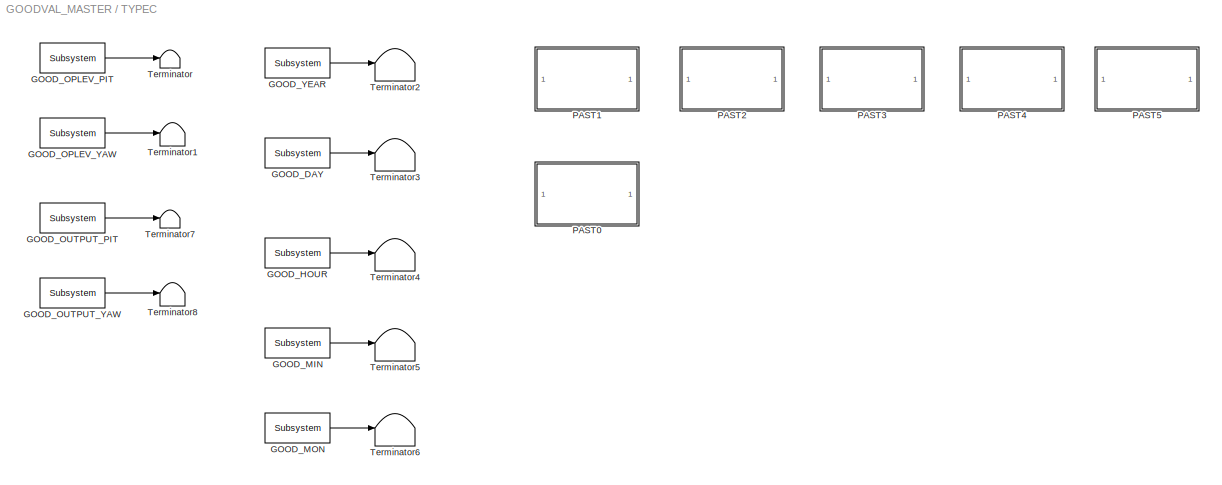
BLOCK [SubSystem] TYPEC
  Ports = []
  RequestExecContextInheritance = off
  SID = 22
  Variant = off
BLOCK [Reference] TYPEC/GOOD_DAY  REF=cdsEpicsIn/Subsystem
  AttributesFormatString = %<Tag>
  Ports = [0, 1]
  SID = 63
  SourceBlock = cdsEpicsIn/Subsystem
  SourceType = SubSystem
  Tag = cdsEpicsIn
BLOCK [Reference] TYPEC/GOOD_HOUR  REF=cdsEpicsIn/Subsystem
  AttributesFormatString = %<Tag>
  Ports = [0, 1]
  SID = 64
  SourceBlock = cdsEpicsIn/Subsystem
  SourceType = SubSystem
  Tag = cdsEpicsIn
BLOCK [Reference] TYPEC/GOOD_MIN  REF=cdsEpicsIn/Subsystem
  AttributesFormatString = %<Tag>
  Ports = [0, 1]
  SID = 65
  SourceBlock = cdsEpicsIn/Subsystem
  SourceType = SubSystem
  Tag = cdsEpicsIn
BLOCK [Reference] TYPEC/GOOD_MON  REF=cdsEpicsIn/Subsystem
  AttributesFormatString = %<Tag>
  Ports = [0, 1]
  SID = 66
  SourceBlock = cdsEpicsIn/Subsystem
  SourceType = SubSystem
  Tag = cdsEpicsIn
BLOCK [Reference] TYPEC/GOOD_OPLEV_PIT  REF=cdsEpicsIn/Subsystem
  AttributesFormatString = %<Tag>
  Ports = [0, 1]
  SID = 67
  SourceBlock = cdsEpicsIn/Subsystem
  SourceType = SubSystem
  Tag = cdsEpicsIn
BLOCK [Reference] TYPEC/GOOD_OPLEV_YAW  REF=cdsEpicsIn/Subsystem
  AttributesFormatString = %<Tag>
  Ports = [0, 1]
  SID = 68
  SourceBlock = cdsEpicsIn/Subsystem
  SourceType = SubSystem
  Tag = cdsEpicsIn
BLOCK [Reference] TYPEC/GOOD_OUTPUT_PIT  REF=cdsEpicsIn/Subsystem
  AttributesFormatString = %<Tag>
  Ports = [0, 1]
  SID = 322
  SourceBlock = cdsEpicsIn/Subsystem
  SourceType = SubSystem
  Tag = cdsEpicsIn
BLOCK [Reference] TYPEC/GOOD_OUTPUT_YAW  REF=cdsEpicsIn/Subsystem
  AttributesFormatString = %<Tag>
  Ports = [0, 1]
  SID = 323
  SourceBlock = cdsEpicsIn/Subsystem
  SourceType = SubSystem
  Tag = cdsEpicsIn
BLOCK [Reference] TYPEC/GOOD_YEAR  REF=cdsEpicsIn/Subsystem
  AttributesFormatString = %<Tag>
  Ports = [0, 1]
  SID = 69
  SourceBlock = cdsEpicsIn/Subsystem
  SourceType = SubSystem
  Tag = cdsEpicsIn
BLOCK [SubSystem] TYPEC/PAST0
  Ports = []
  RequestExecContextInheritance = off
  SID = 197
  Variant = off
BLOCK [Reference] TYPEC/PAST0/GOOD_DAY  REF=cdsEpicsIn/Subsystem
  AttributesFormatString = %<Tag>
  Ports = [0, 1]
  SID = 198
  SourceBlock = cdsEpicsIn/Subsystem
  SourceType = SubSystem
  Tag = cdsEpicsIn
BLOCK [Reference] TYPEC/PAST0/GOOD_HOUR  REF=cdsEpicsIn/Subsystem
  AttributesFormatString = %<Tag>
  Ports = [0, 1]
  SID = 199
  SourceBlock = cdsEpicsIn/Subsystem
  SourceType = SubSystem
  Tag = cdsEpicsIn
BLOCK [Reference] TYPEC/PAST0/GOOD_MIN  REF=cdsEpicsIn/Subsystem
  AttributesFormatString = %<Tag>
  Ports = [0, 1]
  SID = 200
  SourceBlock = cdsEpicsIn/Subsystem
  SourceType = SubSystem
  Tag = cdsEpicsIn
BLOCK [Reference] TYPEC/PAST0/GOOD_MON  REF=cdsEpicsIn/Subsystem
  AttributesFormatString = %<Tag>
  Ports = [0, 1]
  SID = 201
  SourceBlock = cdsEpicsIn/Subsystem
  SourceType = SubSystem
  Tag = cdsEpicsIn
BLOCK [Reference] TYPEC/PAST0/GOOD_OPLEV_PIT  REF=cdsEpicsIn/Subsystem
  AttributesFormatString = %<Tag>
  Ports = [0, 1]
  SID = 202
  SourceBlock = cdsEpicsIn/Subsystem
  SourceType = SubSystem
  Tag = cdsEpicsIn
BLOCK [Reference] TYPEC/PAST0/GOOD_OPLEV_YAW  REF=cdsEpicsIn/Subsystem
  AttributesFormatString = %<Tag>
  Ports = [0, 1]
  SID = 203
  SourceBlock = cdsEpicsIn/Subsystem
  SourceType = SubSystem
  Tag = cdsEpicsIn
BLOCK [Reference] TYPEC/PAST0/GOOD_YEAR  REF=cdsEpicsIn/Subsystem
  AttributesFormatString = %<Tag>
  Ports = [0, 1]
  SID = 204
  SourceBlock = cdsEpicsIn/Subsystem
  SourceType = SubSystem
  Tag = cdsEpicsIn
BLOCK [Terminator] TYPEC/PAST0/Terminator
  SID = 205
BLOCK [Terminator] TYPEC/PAST0/Terminator1
  SID = 206
BLOCK [Terminator] TYPEC/PAST0/Terminator2
  SID = 207
BLOCK [Terminator] TYPEC/PAST0/Terminator3
  SID = 208
BLOCK [Terminator] TYPEC/PAST0/Terminator4
  SID = 209
BLOCK [Terminator] TYPEC/PAST0/Terminator5
  SID = 210
BLOCK [Terminator] TYPEC/PAST0/Terminator6
  SID = 211
BLOCK [SubSystem] TYPEC/PAST1
  Ports = []
  RequestExecContextInheritance = off
  SID = 62
  Variant = off
BLOCK [Reference] TYPEC/PAST1/GOOD_DAY  REF=cdsEpicsIn/Subsystem
  AttributesFormatString = %<Tag>
  Ports = [0, 1]
  SID = 52
  SourceBlock = cdsEpicsIn/Subsystem
  SourceType = SubSystem
  Tag = cdsEpicsIn
BLOCK [Reference] TYPEC/PAST1/GOOD_HOUR  REF=cdsEpicsIn/Subsystem
  AttributesFormatString = %<Tag>
  Ports = [0, 1]
  SID = 53
  SourceBlock = cdsEpicsIn/Subsystem
  SourceType = SubSystem
  Tag = cdsEpicsIn
BLOCK [Reference] TYPEC/PAST1/GOOD_MIN  REF=cdsEpicsIn/Subsystem
  AttributesFormatString = %<Tag>
  Ports = [0, 1]
  SID = 54
  SourceBlock = cdsEpicsIn/Subsystem
  SourceType = SubSystem
  Tag = cdsEpicsIn
BLOCK [Reference] TYPEC/PAST1/GOOD_MON  REF=cdsEpicsIn/Subsystem
  AttributesFormatString = %<Tag>
  Ports = [0, 1]
  SID = 55
  SourceBlock = cdsEpicsIn/Subsystem
  SourceType = SubSystem
  Tag = cdsEpicsIn
BLOCK [Reference] TYPEC/PAST1/GOOD_OPLEV_PIT  REF=cdsEpicsIn/Subsystem
  AttributesFormatString = %<Tag>
  Ports = [0, 1]
  SID = 23
  SourceBlock = cdsEpicsIn/Subsystem
  SourceType = SubSystem
  Tag = cdsEpicsIn
BLOCK [Reference] TYPEC/PAST1/GOOD_OPLEV_YAW  REF=cdsEpicsIn/Subsystem
  AttributesFormatString = %<Tag>
  Ports = [0, 1]
  SID = 24
  SourceBlock = cdsEpicsIn/Subsystem
  SourceType = SubSystem
  Tag = cdsEpicsIn
BLOCK [Reference] TYPEC/PAST1/GOOD_YEAR  REF=cdsEpicsIn/Subsystem
  AttributesFormatString = %<Tag>
  Ports = [0, 1]
  SID = 56
  SourceBlock = cdsEpicsIn/Subsystem
  SourceType = SubSystem
  Tag = cdsEpicsIn
BLOCK [Terminator] TYPEC/PAST1/Terminator
  SID = 34
BLOCK [Terminator] TYPEC/PAST1/Terminator1
  SID = 35
BLOCK [Terminator] TYPEC/PAST1/Terminator2
  SID = 57
BLOCK [Terminator] TYPEC/PAST1/Terminator3
  SID = 58
BLOCK [Terminator] TYPEC/PAST1/Terminator4
  SID = 59
BLOCK [Terminator] TYPEC/PAST1/Terminator5
  SID = 60
BLOCK [Terminator] TYPEC/PAST1/Terminator6
  SID = 61
BLOCK [SubSystem] TYPEC/PAST2
  Ports = []
  RequestExecContextInheritance = off
  SID = 77
  Variant = off
BLOCK [Reference] TYPEC/PAST2/GOOD_DAY  REF=cdsEpicsIn/Subsystem
  AttributesFormatString = %<Tag>
  Ports = [0, 1]
  SID = 141
  SourceBlock = cdsEpicsIn/Subsystem
  SourceType = SubSystem
  Tag = cdsEpicsIn
BLOCK [Reference] TYPEC/PAST2/GOOD_HOUR  REF=cdsEpicsIn/Subsystem
  AttributesFormatString = %<Tag>
  Ports = [0, 1]
  SID = 142
  SourceBlock = cdsEpicsIn/Subsystem
  SourceType = SubSystem
  Tag = cdsEpicsIn
BLOCK [Reference] TYPEC/PAST2/GOOD_MIN  REF=cdsEpicsIn/Subsystem
  AttributesFormatString = %<Tag>
  Ports = [0, 1]
  SID = 143
  SourceBlock = cdsEpicsIn/Subsystem
  SourceType = SubSystem
  Tag = cdsEpicsIn
BLOCK [Reference] TYPEC/PAST2/GOOD_MON  REF=cdsEpicsIn/Subsystem
  AttributesFormatString = %<Tag>
  Ports = [0, 1]
  SID = 144
  SourceBlock = cdsEpicsIn/Subsystem
  SourceType = SubSystem
  Tag = cdsEpicsIn
BLOCK [Reference] TYPEC/PAST2/GOOD_OPLEV_PIT  REF=cdsEpicsIn/Subsystem
  AttributesFormatString = %<Tag>
  Ports = [0, 1]
  SID = 145
  SourceBlock = cdsEpicsIn/Subsystem
  SourceType = SubSystem
  Tag = cdsEpicsIn
BLOCK [Reference] TYPEC/PAST2/GOOD_OPLEV_YAW  REF=cdsEpicsIn/Subsystem
  AttributesFormatString = %<Tag>
  Ports = [0, 1]
  SID = 146
  SourceBlock = cdsEpicsIn/Subsystem
  SourceType = SubSystem
  Tag = cdsEpicsIn
BLOCK [Reference] TYPEC/PAST2/GOOD_YEAR  REF=cdsEpicsIn/Subsystem
  AttributesFormatString = %<Tag>
  Ports = [0, 1]
  SID = 147
  SourceBlock = cdsEpicsIn/Subsystem
  SourceType = SubSystem
  Tag = cdsEpicsIn
BLOCK [Terminator] TYPEC/PAST2/Terminator
  SID = 148
BLOCK [Terminator] TYPEC/PAST2/Terminator1
  SID = 149
BLOCK [Terminator] TYPEC/PAST2/Terminator2
  SID = 150
BLOCK [Terminator] TYPEC/PAST2/Terminator3
  SID = 151
BLOCK [Terminator] TYPEC/PAST2/Terminator4
  SID = 152
BLOCK [Terminator] TYPEC/PAST2/Terminator5
  SID = 153
BLOCK [Terminator] TYPEC/PAST2/Terminator6
  SID = 154
BLOCK [SubSystem] TYPEC/PAST3
  Ports = []
  RequestExecContextInheritance = off
  SID = 78
  Variant = off
BLOCK [Reference] TYPEC/PAST3/GOOD_DAY  REF=cdsEpicsIn/Subsystem
  AttributesFormatString = %<Tag>
  Ports = [0, 1]
  SID = 155
  SourceBlock = cdsEpicsIn/Subsystem
  SourceType = SubSystem
  Tag = cdsEpicsIn
BLOCK [Reference] TYPEC/PAST3/GOOD_HOUR  REF=cdsEpicsIn/Subsystem
  AttributesFormatString = %<Tag>
  Ports = [0, 1]
  SID = 156
  SourceBlock = cdsEpicsIn/Subsystem
  SourceType = SubSystem
  Tag = cdsEpicsIn
BLOCK [Reference] TYPEC/PAST3/GOOD_MIN  REF=cdsEpicsIn/Subsystem
  AttributesFormatString = %<Tag>
  Ports = [0, 1]
  SID = 157
  SourceBlock = cdsEpicsIn/Subsystem
  SourceType = SubSystem
  Tag = cdsEpicsIn
BLOCK [Reference] TYPEC/PAST3/GOOD_MON  REF=cdsEpicsIn/Subsystem
  AttributesFormatString = %<Tag>
  Ports = [0, 1]
  SID = 158
  SourceBlock = cdsEpicsIn/Subsystem
  SourceType = SubSystem
  Tag = cdsEpicsIn
BLOCK [Reference] TYPEC/PAST3/GOOD_OPLEV_PIT  REF=cdsEpicsIn/Subsystem
  AttributesFormatString = %<Tag>
  Ports = [0, 1]
  SID = 159
  SourceBlock = cdsEpicsIn/Subsystem
  SourceType = SubSystem
  Tag = cdsEpicsIn
BLOCK [Reference] TYPEC/PAST3/GOOD_OPLEV_YAW  REF=cdsEpicsIn/Subsystem
  AttributesFormatString = %<Tag>
  Ports = [0, 1]
  SID = 160
  SourceBlock = cdsEpicsIn/Subsystem
  SourceType = SubSystem
  Tag = cdsEpicsIn
BLOCK [Reference] TYPEC/PAST3/GOOD_YEAR  REF=cdsEpicsIn/Subsystem
  AttributesFormatString = %<Tag>
  Ports = [0, 1]
  SID = 161
  SourceBlock = cdsEpicsIn/Subsystem
  SourceType = SubSystem
  Tag = cdsEpicsIn
BLOCK [Terminator] TYPEC/PAST3/Terminator
  SID = 162
BLOCK [Terminator] TYPEC/PAST3/Terminator1
  SID = 163
BLOCK [Terminator] TYPEC/PAST3/Terminator2
  SID = 164
BLOCK [Terminator] TYPEC/PAST3/Terminator3
  SID = 165
BLOCK [Terminator] TYPEC/PAST3/Terminator4
  SID = 166
BLOCK [Terminator] TYPEC/PAST3/Terminator5
  SID = 167
BLOCK [Terminator] TYPEC/PAST3/Terminator6
  SID = 168
BLOCK [SubSystem] TYPEC/PAST4
  Ports = []
  RequestExecContextInheritance = off
  SID = 79
  Variant = off
BLOCK [Reference] TYPEC/PAST4/GOOD_DAY  REF=cdsEpicsIn/Subsystem
  AttributesFormatString = %<Tag>
  Ports = [0, 1]
  SID = 169
  SourceBlock = cdsEpicsIn/Subsystem
  SourceType = SubSystem
  Tag = cdsEpicsIn
BLOCK [Reference] TYPEC/PAST4/GOOD_HOUR  REF=cdsEpicsIn/Subsystem
  AttributesFormatString = %<Tag>
  Ports = [0, 1]
  SID = 170
  SourceBlock = cdsEpicsIn/Subsystem
  SourceType = SubSystem
  Tag = cdsEpicsIn
BLOCK [Reference] TYPEC/PAST4/GOOD_MIN  REF=cdsEpicsIn/Subsystem
  AttributesFormatString = %<Tag>
  Ports = [0, 1]
  SID = 171
  SourceBlock = cdsEpicsIn/Subsystem
  SourceType = SubSystem
  Tag = cdsEpicsIn
BLOCK [Reference] TYPEC/PAST4/GOOD_MON  REF=cdsEpicsIn/Subsystem
  AttributesFormatString = %<Tag>
  Ports = [0, 1]
  SID = 172
  SourceBlock = cdsEpicsIn/Subsystem
  SourceType = SubSystem
  Tag = cdsEpicsIn
BLOCK [Reference] TYPEC/PAST4/GOOD_OPLEV_PIT  REF=cdsEpicsIn/Subsystem
  AttributesFormatString = %<Tag>
  Ports = [0, 1]
  SID = 173
  SourceBlock = cdsEpicsIn/Subsystem
  SourceType = SubSystem
  Tag = cdsEpicsIn
BLOCK [Reference] TYPEC/PAST4/GOOD_OPLEV_YAW  REF=cdsEpicsIn/Subsystem
  AttributesFormatString = %<Tag>
  Ports = [0, 1]
  SID = 174
  SourceBlock = cdsEpicsIn/Subsystem
  SourceType = SubSystem
  Tag = cdsEpicsIn
BLOCK [Reference] TYPEC/PAST4/GOOD_YEAR  REF=cdsEpicsIn/Subsystem
  AttributesFormatString = %<Tag>
  Ports = [0, 1]
  SID = 175
  SourceBlock = cdsEpicsIn/Subsystem
  SourceType = SubSystem
  Tag = cdsEpicsIn
BLOCK [Terminator] TYPEC/PAST4/Terminator
  SID = 176
BLOCK [Terminator] TYPEC/PAST4/Terminator1
  SID = 177
BLOCK [Terminator] TYPEC/PAST4/Terminator2
  SID = 178
BLOCK [Terminator] TYPEC/PAST4/Terminator3
  SID = 179
BLOCK [Terminator] TYPEC/PAST4/Terminator4
  SID = 180
BLOCK [Terminator] TYPEC/PAST4/Terminator5
  SID = 181
BLOCK [Terminator] TYPEC/PAST4/Terminator6
  SID = 182
BLOCK [SubSystem] TYPEC/PAST5
  Ports = []
  RequestExecContextInheritance = off
  SID = 80
  Variant = off
BLOCK [Reference] TYPEC/PAST5/GOOD_DAY  REF=cdsEpicsIn/Subsystem
  AttributesFormatString = %<Tag>
  Ports = [0, 1]
  SID = 183
  SourceBlock = cdsEpicsIn/Subsystem
  SourceType = SubSystem
  Tag = cdsEpicsIn
BLOCK [Reference] TYPEC/PAST5/GOOD_HOUR  REF=cdsEpicsIn/Subsystem
  AttributesFormatString = %<Tag>
  Ports = [0, 1]
  SID = 184
  SourceBlock = cdsEpicsIn/Subsystem
  SourceType = SubSystem
  Tag = cdsEpicsIn
BLOCK [Reference] TYPEC/PAST5/GOOD_MIN  REF=cdsEpicsIn/Subsystem
  AttributesFormatString = %<Tag>
  Ports = [0, 1]
  SID = 185
  SourceBlock = cdsEpicsIn/Subsystem
  SourceType = SubSystem
  Tag = cdsEpicsIn
BLOCK [Reference] TYPEC/PAST5/GOOD_MON  REF=cdsEpicsIn/Subsystem
  AttributesFormatString = %<Tag>
  Ports = [0, 1]
  SID = 186
  SourceBlock = cdsEpicsIn/Subsystem
  SourceType = SubSystem
  Tag = cdsEpicsIn
BLOCK [Reference] TYPEC/PAST5/GOOD_OPLEV_PIT  REF=cdsEpicsIn/Subsystem
  AttributesFormatString = %<Tag>
  Ports = [0, 1]
  SID = 187
  SourceBlock = cdsEpicsIn/Subsystem
  SourceType = SubSystem
  Tag = cdsEpicsIn
BLOCK [Reference] TYPEC/PAST5/GOOD_OPLEV_YAW  REF=cdsEpicsIn/Subsystem
  AttributesFormatString = %<Tag>
  Ports = [0, 1]
  SID = 188
  SourceBlock = cdsEpicsIn/Subsystem
  SourceType = SubSystem
  Tag = cdsEpicsIn
BLOCK [Reference] TYPEC/PAST5/GOOD_YEAR  REF=cdsEpicsIn/Subsystem
  AttributesFormatString = %<Tag>
  Ports = [0, 1]
  SID = 189
  SourceBlock = cdsEpicsIn/Subsystem
  SourceType = SubSystem
  Tag = cdsEpicsIn
BLOCK [Terminator] TYPEC/PAST5/Terminator
  SID = 190
BLOCK [Terminator] TYPEC/PAST5/Terminator1
  SID = 191
BLOCK [Terminator] TYPEC/PAST5/Terminator2
  SID = 192
BLOCK [Terminator] TYPEC/PAST5/Terminator3
  SID = 193
BLOCK [Terminator] TYPEC/PAST5/Terminator4
  SID = 194
BLOCK [Terminator] TYPEC/PAST5/Terminator5
  SID = 195
BLOCK [Terminator] TYPEC/PAST5/Terminator6
  SID = 196
BLOCK [Terminator] TYPEC/Terminator
  SID = 70
BLOCK [Terminator] TYPEC/Terminator1
  SID = 71
BLOCK [Terminator] TYPEC/Terminator2
  SID = 72
BLOCK [Terminator] TYPEC/Terminator3
  SID = 73
BLOCK [Terminator] TYPEC/Terminator4
  SID = 74
BLOCK [Terminator] TYPEC/Terminator5
  SID = 75
BLOCK [Terminator] TYPEC/Terminator6
  SID = 76
BLOCK [Terminator] TYPEC/Terminator7
  SID = 324
BLOCK [Terminator] TYPEC/Terminator8
  SID = 325
LINE ASC/GOOD_DAY:1 -> ASC/Terminator3:1
LINE ASC/GOOD_HOUR:1 -> ASC/Terminator4:1
LINE ASC/GOOD_MIN:1 -> ASC/Terminator5:1
LINE ASC/GOOD_MON:1 -> ASC/Terminator6:1
LINE ASC/GOOD_PIT:1 -> ASC/Terminator:1
LINE ASC/GOOD_YAW:1 -> ASC/Terminator1:1
LINE ASC/GOOD_YEAR:1 -> ASC/Terminator2:1
LINE ASC/PAST1/GOOD_DAY:1 -> ASC/PAST1/Terminator3:1
LINE ASC/PAST1/GOOD_HOUR:1 -> ASC/PAST1/Terminator4:1
LINE ASC/PAST1/GOOD_MIN:1 -> ASC/PAST1/Terminator5:1
LINE ASC/PAST1/GOOD_MON:1 -> ASC/PAST1/Terminator6:1
LINE ASC/PAST1/GOOD_QPD_PIT:1 -> ASC/PAST1/Terminator:1
LINE ASC/PAST1/GOOD_QPD_YAW:1 -> ASC/PAST1/Terminator1:1
LINE ASC/PAST1/GOOD_YEAR:1 -> ASC/PAST1/Terminator2:1
LINE TYPEA/BF/INMON:1 -> TYPEA/BF/Terminator1:1
LINE TYPEA/BF/OUTMON:1 -> TYPEA/BF/Terminator2:1
LINE TYPEA/F0/INMON:1 -> TYPEA/F0/Terminator1:1
LINE TYPEA/F0/OUTMON:1 -> TYPEA/F0/Terminator2:1
LINE TYPEA/F1/INMON:1 -> TYPEA/F1/Terminator1:1
LINE TYPEA/F1/OUTMON:1 -> TYPEA/F1/Terminator2:1
LINE TYPEA/F2/INMON:1 -> TYPEA/F2/Terminator1:1
LINE TYPEA/F2/OUTMON:1 -> TYPEA/F2/Terminator2:1
LINE TYPEA/F3/INMON:1 -> TYPEA/F3/Terminator1:1
LINE TYPEA/F3/OUTMON:1 -> TYPEA/F3/Terminator2:1
LINE TYPEA/GOOD_DAY:1 -> TYPEA/Terminator4:1
LINE TYPEA/GOOD_HOUR:1 -> TYPEA/Terminator5:1
LINE TYPEA/GOOD_MIN:1 -> TYPEA/Terminator6:1
LINE TYPEA/GOOD_MON:1 -> TYPEA/Terminator7:1
LINE TYPEA/GOOD_OPLEV_PIT:1 -> TYPEA/Terminator:1
LINE TYPEA/GOOD_OPLEV_YAW:1 -> TYPEA/Terminator1:1
LINE TYPEA/GOOD_YEAR:1 -> TYPEA/Terminator3:1
LINE TYPEA/Ground1:1 -> TYPEA/MTRX_LOCK_IP:1
LINE TYPEA/Ground2:1 -> TYPEA/MTRX_LOCK_BF:1
LINE TYPEA/Ground3:1 -> TYPEA/MTRX_LOCK_GAS:1
LINE TYPEA/Ground4:1 -> TYPEA/MTRX_LOCK_MN:1
LINE TYPEA/Ground5:1 -> TYPEA/MTRX_LOCK_IM:1
LINE TYPEA/Ground6:1 -> TYPEA/MTRX_LOCK_TM:1
LINE TYPEA/Ground7:1 -> TYPEA/MTRX_LOCK_MNOL:1
LINE TYPEA/IM/INMON:1 -> TYPEA/IM/Terminator1:1
LINE TYPEA/IM/OUTMON:1 -> TYPEA/IM/Terminator2:1
LINE TYPEA/IP/INMON:1 -> TYPEA/IP/Terminator1:1
LINE TYPEA/IP/OUTMON:1 -> TYPEA/IP/Terminator2:1
LINE TYPEA/MN/INMON:1 -> TYPEA/MN/Terminator1:1
LINE TYPEA/MN/OUTMON:1 -> TYPEA/MN/Terminator2:1
LINE TYPEA/MTRX_LOCK_BF:1 -> TYPEA/Terminator9:1
LINE TYPEA/MTRX_LOCK_GAS:1 -> TYPEA/Terminator10:1
LINE TYPEA/MTRX_LOCK_IM:1 -> TYPEA/Terminator12:1
LINE TYPEA/MTRX_LOCK_IP:1 -> TYPEA/Terminator8:1
LINE TYPEA/MTRX_LOCK_MN:1 -> TYPEA/Terminator11:1
LINE TYPEA/MTRX_LOCK_MNOL:1 -> TYPEA/Terminator14:1
LINE TYPEA/MTRX_LOCK_TM:1 -> TYPEA/Terminator13:1
LINE TYPEA/PAST0/GOOD_DAY:1 -> TYPEA/PAST0/Terminator3:1
LINE TYPEA/PAST0/GOOD_HOUR:1 -> TYPEA/PAST0/Terminator4:1
LINE TYPEA/PAST0/GOOD_MIN:1 -> TYPEA/PAST0/Terminator5:1
LINE TYPEA/PAST0/GOOD_MON:1 -> TYPEA/PAST0/Terminator6:1
LINE TYPEA/PAST0/GOOD_OPLEV_PIT:1 -> TYPEA/PAST0/Terminator:1
LINE TYPEA/PAST0/GOOD_OPLEV_YAW:1 -> TYPEA/PAST0/Terminator1:1
LINE TYPEA/PAST0/GOOD_YEAR:1 -> TYPEA/PAST0/Terminator2:1
LINE TYPEA/PAST1/GOOD_DAY:1 -> TYPEA/PAST1/Terminator3:1
LINE TYPEA/PAST1/GOOD_HOUR:1 -> TYPEA/PAST1/Terminator4:1
LINE TYPEA/PAST1/GOOD_MIN:1 -> TYPEA/PAST1/Terminator5:1
LINE TYPEA/PAST1/GOOD_MON:1 -> TYPEA/PAST1/Terminator6:1
LINE TYPEA/PAST1/GOOD_OPLEV_PIT:1 -> TYPEA/PAST1/Terminator:1
LINE TYPEA/PAST1/GOOD_OPLEV_YAW:1 -> TYPEA/PAST1/Terminator1:1
LINE TYPEA/PAST1/GOOD_YEAR:1 -> TYPEA/PAST1/Terminator2:1
LINE TYPEA/PAST2/GOOD_DAY:1 -> TYPEA/PAST2/Terminator3:1
LINE TYPEA/PAST2/GOOD_HOUR:1 -> TYPEA/PAST2/Terminator4:1
LINE TYPEA/PAST2/GOOD_MIN:1 -> TYPEA/PAST2/Terminator5:1
LINE TYPEA/PAST2/GOOD_MON:1 -> TYPEA/PAST2/Terminator6:1
LINE TYPEA/PAST2/GOOD_OPLEV_PIT:1 -> TYPEA/PAST2/Terminator:1
LINE TYPEA/PAST2/GOOD_OPLEV_YAW:1 -> TYPEA/PAST2/Terminator1:1
LINE TYPEA/PAST2/GOOD_YEAR:1 -> TYPEA/PAST2/Terminator2:1
LINE TYPEA/PAST3/GOOD_DAY:1 -> TYPEA/PAST3/Terminator3:1
LINE TYPEA/PAST3/GOOD_HOUR:1 -> TYPEA/PAST3/Terminator4:1
LINE TYPEA/PAST3/GOOD_MIN:1 -> TYPEA/PAST3/Terminator5:1
LINE TYPEA/PAST3/GOOD_MON:1 -> TYPEA/PAST3/Terminator6:1
LINE TYPEA/PAST3/GOOD_OPLEV_PIT:1 -> TYPEA/PAST3/Terminator:1
LINE TYPEA/PAST3/GOOD_OPLEV_YAW:1 -> TYPEA/PAST3/Terminator1:1
LINE TYPEA/PAST3/GOOD_YEAR:1 -> TYPEA/PAST3/Terminator2:1
LINE TYPEA/PAST4/GOOD_DAY:1 -> TYPEA/PAST4/Terminator3:1
LINE TYPEA/PAST4/GOOD_HOUR:1 -> TYPEA/PAST4/Terminator4:1
LINE TYPEA/PAST4/GOOD_MIN:1 -> TYPEA/PAST4/Terminator5:1
LINE TYPEA/PAST4/GOOD_MON:1 -> TYPEA/PAST4/Terminator6:1
LINE TYPEA/PAST4/GOOD_OPLEV_PIT:1 -> TYPEA/PAST4/Terminator:1
LINE TYPEA/PAST4/GOOD_OPLEV_YAW:1 -> TYPEA/PAST4/Terminator1:1
LINE TYPEA/PAST4/GOOD_YEAR:1 -> TYPEA/PAST4/Terminator2:1
LINE TYPEA/PAST5/GOOD_DAY:1 -> TYPEA/PAST5/Terminator3:1
LINE TYPEA/PAST5/GOOD_HOUR:1 -> TYPEA/PAST5/Terminator4:1
LINE TYPEA/PAST5/GOOD_MIN:1 -> TYPEA/PAST5/Terminator5:1
LINE TYPEA/PAST5/GOOD_MON:1 -> TYPEA/PAST5/Terminator6:1
LINE TYPEA/PAST5/GOOD_OPLEV_PIT:1 -> TYPEA/PAST5/Terminator:1
LINE TYPEA/PAST5/GOOD_OPLEV_YAW:1 -> TYPEA/PAST5/Terminator1:1
LINE TYPEA/PAST5/GOOD_YEAR:1 -> TYPEA/PAST5/Terminator2:1
LINE TYPEA/TM/INMON:1 -> TYPEA/TM/Terminator1:1
LINE TYPEA/TM/OPLEV/LEN_BLRMS_Y/TH_100M_300M:1 -> TYPEA/TM/OPLEV/LEN_BLRMS_Y/Terminator9:1
LINE TYPEA/TM/OPLEV/LEN_BLRMS_Y/TH_10_30:1 -> TYPEA/TM/OPLEV/LEN_BLRMS_Y/Terminator8:1
LINE TYPEA/TM/OPLEV/LEN_BLRMS_Y/TH_1_3:1 -> TYPEA/TM/OPLEV/LEN_BLRMS_Y/Terminator6:1
LINE TYPEA/TM/OPLEV/LEN_BLRMS_Y/TH_300M_1:1 -> TYPEA/TM/OPLEV/LEN_BLRMS_Y/Terminator3:1
LINE TYPEA/TM/OPLEV/LEN_BLRMS_Y/TH_30M:1 -> TYPEA/TM/OPLEV/LEN_BLRMS_Y/Terminator1:1
LINE TYPEA/TM/OPLEV/LEN_BLRMS_Y/TH_30M_100M:1 -> TYPEA/TM/OPLEV/LEN_BLRMS_Y/Terminator4:1
LINE TYPEA/TM/OPLEV/LEN_BLRMS_Y/TH_30_100:1 -> TYPEA/TM/OPLEV/LEN_BLRMS_Y/Terminator7:1
LINE TYPEA/TM/OPLEV/LEN_BLRMS_Y/TH_3_10:1 -> TYPEA/TM/OPLEV/LEN_BLRMS_Y/Terminator5:1
LINE TYPEA/TM/OPLEV/LEN_BLRMS_Y/TH_NONLIN:1 -> TYPEA/TM/OPLEV/LEN_BLRMS_Y/Terminator2:1
LINE TYPEA/TM/OPLEV/TILT_BLRMS_P/TH_100M_300M:1 -> TYPEA/TM/OPLEV/TILT_BLRMS_P/Terminator9:1
LINE TYPEA/TM/OPLEV/TILT_BLRMS_P/TH_10_30:1 -> TYPEA/TM/OPLEV/TILT_BLRMS_P/Terminator8:1
LINE TYPEA/TM/OPLEV/TILT_BLRMS_P/TH_1_3:1 -> TYPEA/TM/OPLEV/TILT_BLRMS_P/Terminator6:1
LINE TYPEA/TM/OPLEV/TILT_BLRMS_P/TH_300M_1:1 -> TYPEA/TM/OPLEV/TILT_BLRMS_P/Terminator3:1
LINE TYPEA/TM/OPLEV/TILT_BLRMS_P/TH_30M:1 -> TYPEA/TM/OPLEV/TILT_BLRMS_P/Terminator1:1
LINE TYPEA/TM/OPLEV/TILT_BLRMS_P/TH_30M_100M:1 -> TYPEA/TM/OPLEV/TILT_BLRMS_P/Terminator4:1
LINE TYPEA/TM/OPLEV/TILT_BLRMS_P/TH_30_100:1 -> TYPEA/TM/OPLEV/TILT_BLRMS_P/Terminator7:1
LINE TYPEA/TM/OPLEV/TILT_BLRMS_P/TH_3_10:1 -> TYPEA/TM/OPLEV/TILT_BLRMS_P/Terminator5:1
LINE TYPEA/TM/OPLEV/TILT_BLRMS_P/TH_NONLIN:1 -> TYPEA/TM/OPLEV/TILT_BLRMS_P/Terminator2:1
LINE TYPEA/TM/OPLEV/TILT_BLRMS_Y/TH_100M_300M:1 -> TYPEA/TM/OPLEV/TILT_BLRMS_Y/Terminator9:1
LINE TYPEA/TM/OPLEV/TILT_BLRMS_Y/TH_10_30:1 -> TYPEA/TM/OPLEV/TILT_BLRMS_Y/Terminator8:1
LINE TYPEA/TM/OPLEV/TILT_BLRMS_Y/TH_1_3:1 -> TYPEA/TM/OPLEV/TILT_BLRMS_Y/Terminator6:1
LINE TYPEA/TM/OPLEV/TILT_BLRMS_Y/TH_300M_1:1 -> TYPEA/TM/OPLEV/TILT_BLRMS_Y/Terminator3:1
LINE TYPEA/TM/OPLEV/TILT_BLRMS_Y/TH_30M:1 -> TYPEA/TM/OPLEV/TILT_BLRMS_Y/Terminator1:1
LINE TYPEA/TM/OPLEV/TILT_BLRMS_Y/TH_30M_100M:1 -> TYPEA/TM/OPLEV/TILT_BLRMS_Y/Terminator4:1
LINE TYPEA/TM/OPLEV/TILT_BLRMS_Y/TH_30_100:1 -> TYPEA/TM/OPLEV/TILT_BLRMS_Y/Terminator7:1
LINE TYPEA/TM/OPLEV/TILT_BLRMS_Y/TH_3_10:1 -> TYPEA/TM/OPLEV/TILT_BLRMS_Y/Terminator5:1
LINE TYPEA/TM/OPLEV/TILT_BLRMS_Y/TH_NONLIN:1 -> TYPEA/TM/OPLEV/TILT_BLRMS_Y/Terminator2:1
LINE TYPEA/TM/OUTMON:1 -> TYPEA/TM/Terminator2:1
LINE TYPEA/WD:1 -> TYPEA/Terminator2:1
LINE TYPEB/GOOD_DAY:1 -> TYPEB/Terminator3:1
LINE TYPEB/GOOD_HOUR:1 -> TYPEB/Terminator4:1
LINE TYPEB/GOOD_MIN:1 -> TYPEB/Terminator5:1
LINE TYPEB/GOOD_MON:1 -> TYPEB/Terminator6:1
LINE TYPEB/GOOD_OPLEV_PIT:1 -> TYPEB/Terminator:1
LINE TYPEB/GOOD_OPLEV_YAW:1 -> TYPEB/Terminator1:1
LINE TYPEB/GOOD_YEAR:1 -> TYPEB/Terminator2:1
LINE TYPEBP/GOOD_DAY:1 -> TYPEBP/Terminator3:1
LINE TYPEBP/GOOD_HOUR:1 -> TYPEBP/Terminator4:1
LINE TYPEBP/GOOD_MIN:1 -> TYPEBP/Terminator5:1
LINE TYPEBP/GOOD_MON:1 -> TYPEBP/Terminator6:1
LINE TYPEBP/GOOD_OPLEV_PIT:1 -> TYPEBP/Terminator:1
LINE TYPEBP/GOOD_OPLEV_YAW:1 -> TYPEBP/Terminator1:1
LINE TYPEBP/GOOD_YEAR:1 -> TYPEBP/Terminator2:1
LINE TYPEC/GOOD_DAY:1 -> TYPEC/Terminator3:1
LINE TYPEC/GOOD_HOUR:1 -> TYPEC/Terminator4:1
LINE TYPEC/GOOD_MIN:1 -> TYPEC/Terminator5:1
LINE TYPEC/GOOD_MON:1 -> TYPEC/Terminator6:1
LINE TYPEC/GOOD_OPLEV_PIT:1 -> TYPEC/Terminator:1
LINE TYPEC/GOOD_OPLEV_YAW:1 -> TYPEC/Terminator1:1
LINE TYPEC/GOOD_OUTPUT_PIT:1 -> TYPEC/Terminator7:1
LINE TYPEC/GOOD_OUTPUT_YAW:1 -> TYPEC/Terminator8:1
LINE TYPEC/GOOD_YEAR:1 -> TYPEC/Terminator2:1
LINE TYPEC/PAST0/GOOD_DAY:1 -> TYPEC/PAST0/Terminator3:1
LINE TYPEC/PAST0/GOOD_HOUR:1 -> TYPEC/PAST0/Terminator4:1
LINE TYPEC/PAST0/GOOD_MIN:1 -> TYPEC/PAST0/Terminator5:1
LINE TYPEC/PAST0/GOOD_MON:1 -> TYPEC/PAST0/Terminator6:1
LINE TYPEC/PAST0/GOOD_OPLEV_PIT:1 -> TYPEC/PAST0/Terminator:1
LINE TYPEC/PAST0/GOOD_OPLEV_YAW:1 -> TYPEC/PAST0/Terminator1:1
LINE TYPEC/PAST0/GOOD_YEAR:1 -> TYPEC/PAST0/Terminator2:1
LINE TYPEC/PAST1/GOOD_DAY:1 -> TYPEC/PAST1/Terminator3:1
LINE TYPEC/PAST1/GOOD_HOUR:1 -> TYPEC/PAST1/Terminator4:1
LINE TYPEC/PAST1/GOOD_MIN:1 -> TYPEC/PAST1/Terminator5:1
LINE TYPEC/PAST1/GOOD_MON:1 -> TYPEC/PAST1/Terminator6:1
LINE TYPEC/PAST1/GOOD_OPLEV_PIT:1 -> TYPEC/PAST1/Terminator:1
LINE TYPEC/PAST1/GOOD_OPLEV_YAW:1 -> TYPEC/PAST1/Terminator1:1
LINE TYPEC/PAST1/GOOD_YEAR:1 -> TYPEC/PAST1/Terminator2:1
LINE TYPEC/PAST2/GOOD_DAY:1 -> TYPEC/PAST2/Terminator3:1
LINE TYPEC/PAST2/GOOD_HOUR:1 -> TYPEC/PAST2/Terminator4:1
LINE TYPEC/PAST2/GOOD_MIN:1 -> TYPEC/PAST2/Terminator5:1
LINE TYPEC/PAST2/GOOD_MON:1 -> TYPEC/PAST2/Terminator6:1
LINE TYPEC/PAST2/GOOD_OPLEV_PIT:1 -> TYPEC/PAST2/Terminator:1
LINE TYPEC/PAST2/GOOD_OPLEV_YAW:1 -> TYPEC/PAST2/Terminator1:1
LINE TYPEC/PAST2/GOOD_YEAR:1 -> TYPEC/PAST2/Terminator2:1
LINE TYPEC/PAST3/GOOD_DAY:1 -> TYPEC/PAST3/Terminator3:1
LINE TYPEC/PAST3/GOOD_HOUR:1 -> TYPEC/PAST3/Terminator4:1
LINE TYPEC/PAST3/GOOD_MIN:1 -> TYPEC/PAST3/Terminator5:1
LINE TYPEC/PAST3/GOOD_MON:1 -> TYPEC/PAST3/Terminator6:1
LINE TYPEC/PAST3/GOOD_OPLEV_PIT:1 -> TYPEC/PAST3/Terminator:1
LINE TYPEC/PAST3/GOOD_OPLEV_YAW:1 -> TYPEC/PAST3/Terminator1:1
LINE TYPEC/PAST3/GOOD_YEAR:1 -> TYPEC/PAST3/Terminator2:1
LINE TYPEC/PAST4/GOOD_DAY:1 -> TYPEC/PAST4/Terminator3:1
LINE TYPEC/PAST4/GOOD_HOUR:1 -> TYPEC/PAST4/Terminator4:1
LINE TYPEC/PAST4/GOOD_MIN:1 -> TYPEC/PAST4/Terminator5:1
LINE TYPEC/PAST4/GOOD_MON:1 -> TYPEC/PAST4/Terminator6:1
LINE TYPEC/PAST4/GOOD_OPLEV_PIT:1 -> TYPEC/PAST4/Terminator:1
LINE TYPEC/PAST4/GOOD_OPLEV_YAW:1 -> TYPEC/PAST4/Terminator1:1
LINE TYPEC/PAST4/GOOD_YEAR:1 -> TYPEC/PAST4/Terminator2:1
LINE TYPEC/PAST5/GOOD_DAY:1 -> TYPEC/PAST5/Terminator3:1
LINE TYPEC/PAST5/GOOD_HOUR:1 -> TYPEC/PAST5/Terminator4:1
LINE TYPEC/PAST5/GOOD_MIN:1 -> TYPEC/PAST5/Terminator5:1
LINE TYPEC/PAST5/GOOD_MON:1 -> TYPEC/PAST5/Terminator6:1
LINE TYPEC/PAST5/GOOD_OPLEV_PIT:1 -> TYPEC/PAST5/Terminator:1
LINE TYPEC/PAST5/GOOD_OPLEV_YAW:1 -> TYPEC/PAST5/Terminator1:1
LINE TYPEC/PAST5/GOOD_YEAR:1 -> TYPEC/PAST5/Terminator2:1
